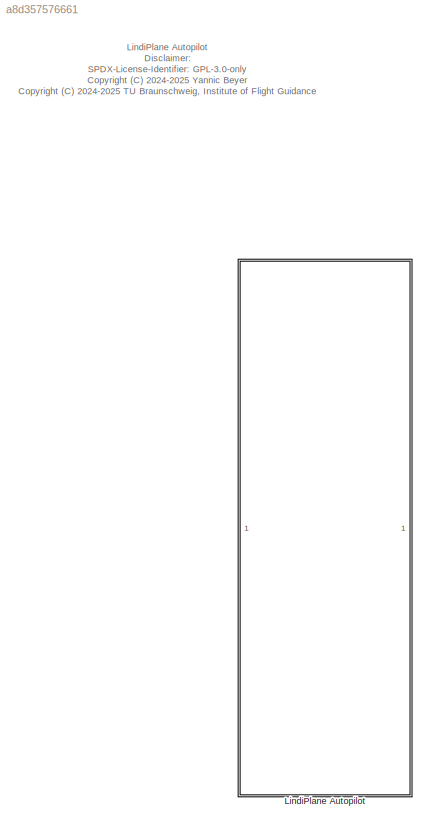
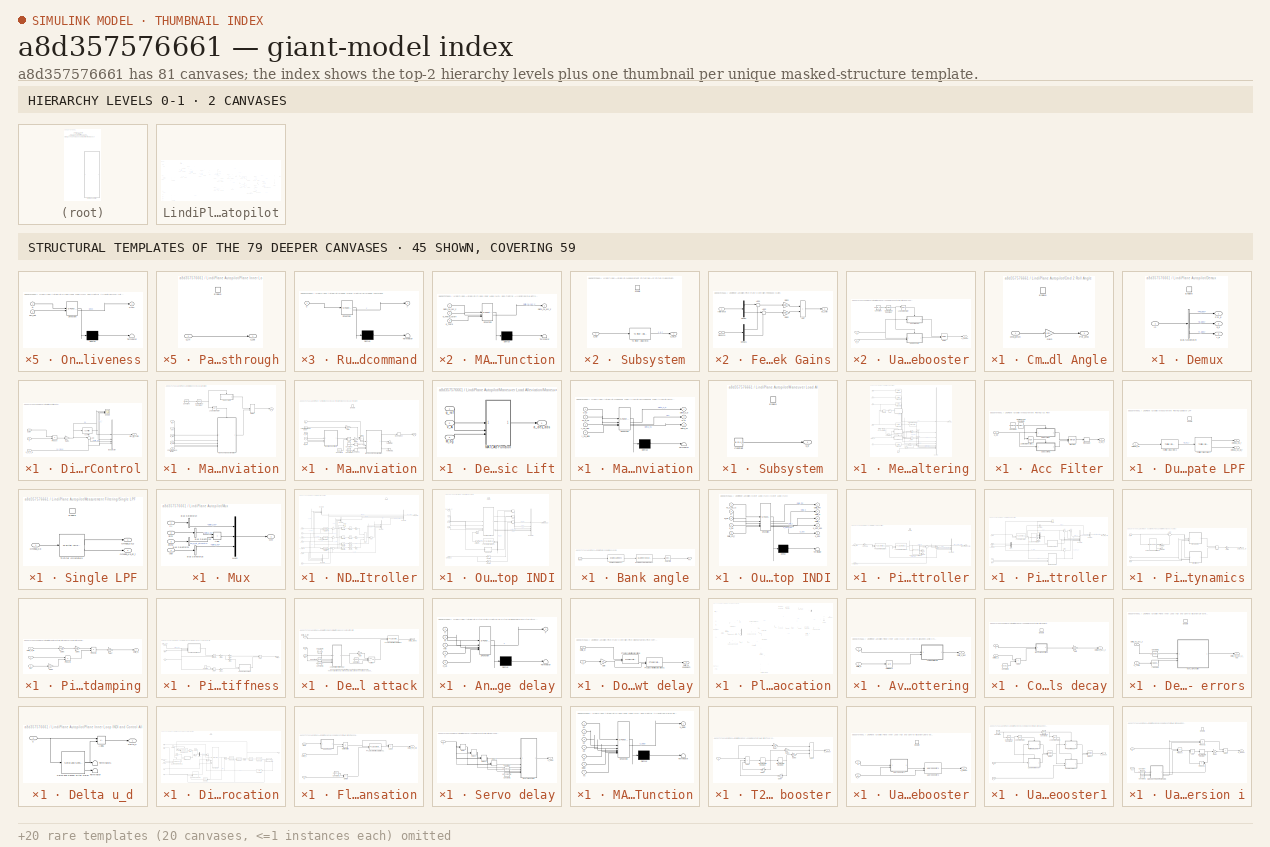
[diagram: thumbnail index - top-2 hierarchy levels (2 canvases) + 45 structural-template representatives of the remaining 79 canvases]
MODEL slx_a8d357576661
KIND library
CONFIG AbsTol = auto
CONFIG EnableMultiTasking = off
CONFIG FixedStep = auto
CONFIG MaxStep = auto
CONFIG MinStep = auto
CONFIG RelTol = 1e-3
CONFIG SampleTimeConstraint = Unconstrained
CONFIG SolverName = VariableStepAuto
CONFIG StartTime = 0.0
CONFIG StopTime = 10.0
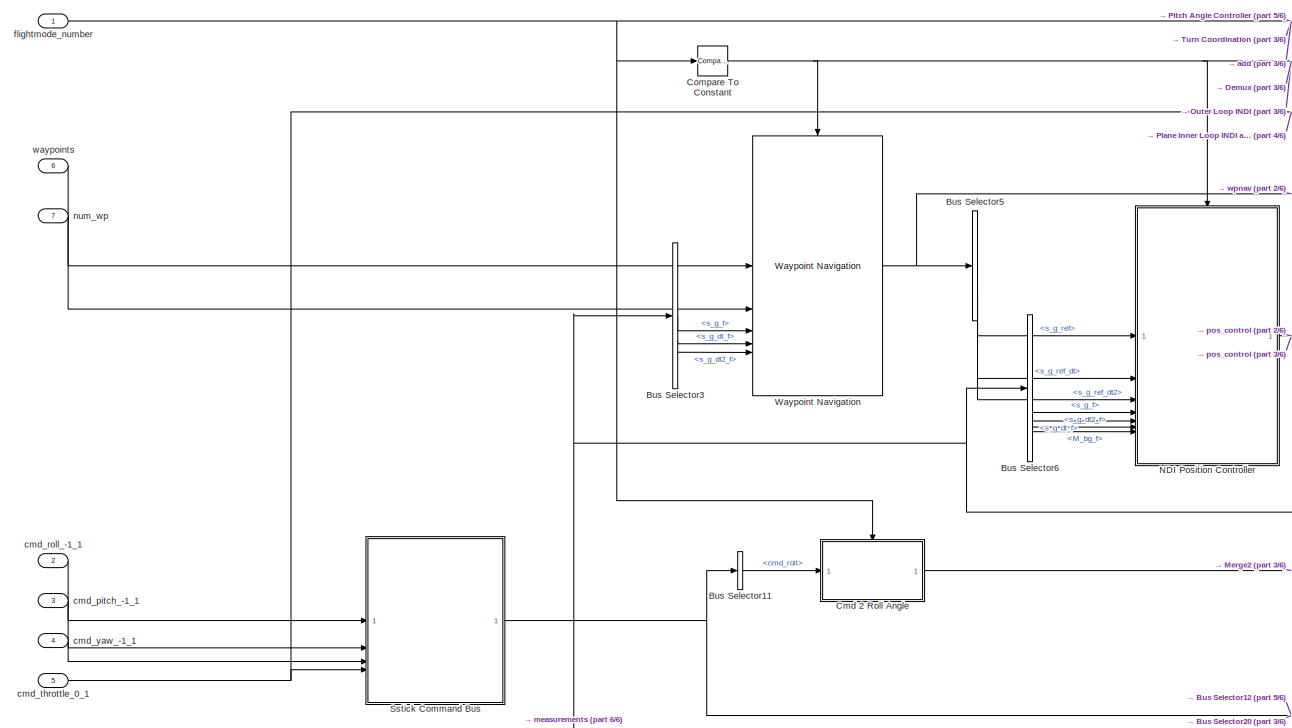
[diagram: LindiPlane Autopilot - part 1/6, top left region]
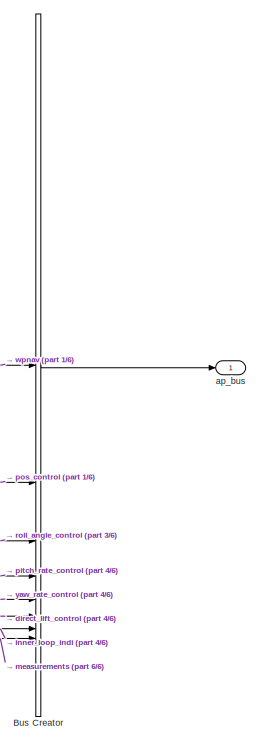
[diagram: LindiPlane Autopilot - part 2/6, middle right region]
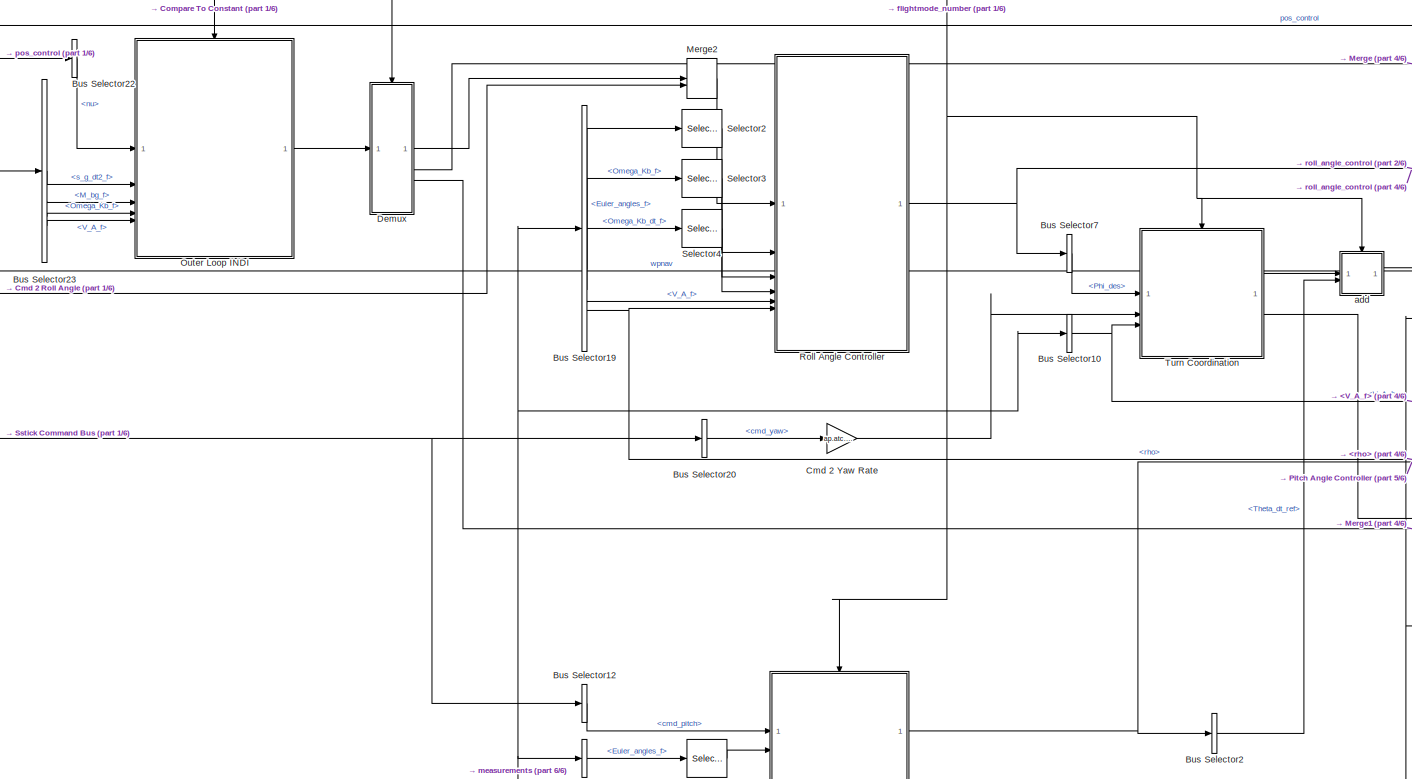
[diagram: LindiPlane Autopilot - part 3/6, central region]
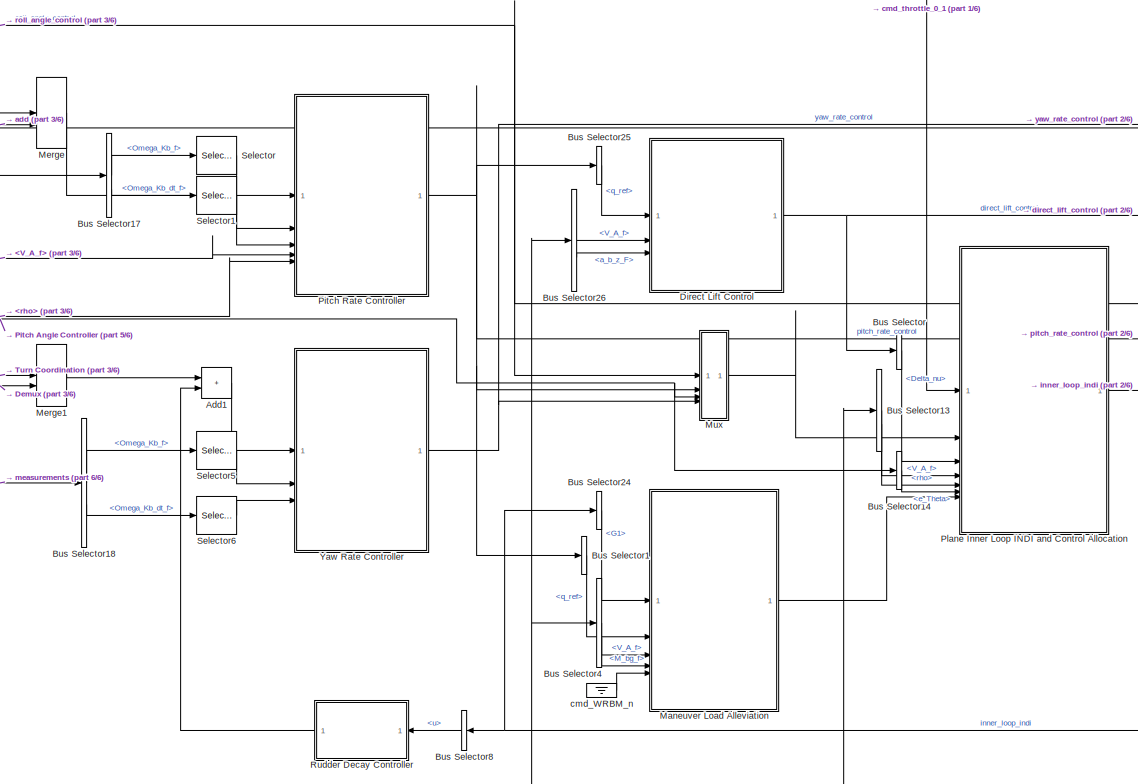
[diagram: LindiPlane Autopilot - part 4/6, middle right region]
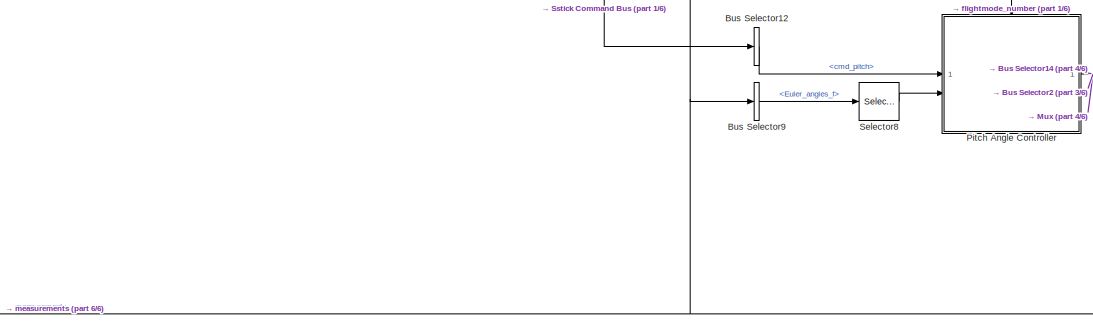
[diagram: LindiPlane Autopilot - part 5/6, bottom center region]
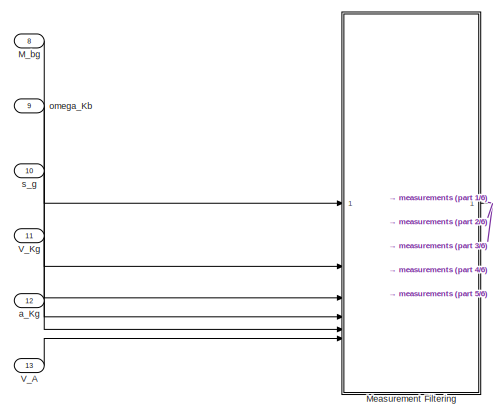
[diagram: LindiPlane Autopilot - part 6/6, bottom left region]
BLOCK [SubSystem] LindiPlane Autopilot
BLOCK [Sum] LindiPlane Autopilot/Add1
  IconShape = rectangular
BLOCK [BusCreator] LindiPlane Autopilot/Bus Creator
  DisplayOption = bar
  InheritFromInputs = on
  Inputs = 8
BLOCK [BusSelector] LindiPlane Autopilot/Bus Selector
  OutputSignals = Delta_nu
BLOCK [BusSelector] LindiPlane Autopilot/Bus Selector1
  OutputSignals = reference.q_ref
BLOCK [BusSelector] LindiPlane Autopilot/Bus Selector10
  OutputSignals = V_A_f
BLOCK [BusSelector] LindiPlane Autopilot/Bus Selector11
  OutputSignals = cmd_roll
BLOCK [BusSelector] LindiPlane Autopilot/Bus Selector12
  OutputSignals = cmd_pitch
BLOCK [BusSelector] LindiPlane Autopilot/Bus Selector13
  OutputSignals = V_A_f,rho
BLOCK [BusSelector] LindiPlane Autopilot/Bus Selector14
  OutputSignals = e_Theta
BLOCK [BusSelector] LindiPlane Autopilot/Bus Selector17
  OutputSignals = Omega_Kb_f,Omega_Kb_dt_f
BLOCK [BusSelector] LindiPlane Autopilot/Bus Selector18
  OutputSignals = Omega_Kb_f,Omega_Kb_dt_f
BLOCK [BusSelector] LindiPlane Autopilot/Bus Selector19
  OutputSignals = Euler_angles_f,Omega_Kb_f,Omega_Kb_dt_f,V_A_f,rho
BLOCK [BusSelector] LindiPlane Autopilot/Bus Selector2
  OutputSignals = Theta_dt_ref
BLOCK [BusSelector] LindiPlane Autopilot/Bus Selector20
  OutputSignals = cmd_yaw
BLOCK [BusSelector] LindiPlane Autopilot/Bus Selector22
  OutputSignals = pseudo_control.nu
BLOCK [BusSelector] LindiPlane Autopilot/Bus Selector23
  OutputSignals = s_g_dt2_f,M_bg_f,Omega_Kb_f,V_A_f
BLOCK [BusSelector] LindiPlane Autopilot/Bus Selector24
  OutputSignals = G1
BLOCK [BusSelector] LindiPlane Autopilot/Bus Selector25
  OutputSignals = reference.q_ref
BLOCK [BusSelector] LindiPlane Autopilot/Bus Selector26
  OutputSignals = V_A_f,a_b_z_F
BLOCK [BusSelector] LindiPlane Autopilot/Bus Selector3
  OutputSignals = s_g_f,s_g_dt_f,s_g_dt2_f
BLOCK [BusSelector] LindiPlane Autopilot/Bus Selector4
  OutputSignals = V_A_f,M_bg_f
BLOCK [BusSelector] LindiPlane Autopilot/Bus Selector5
  OutputSignals = ref_smooth.s_g_ref,ref_smooth.s_g_ref_dt,ref_smooth.s_g_ref_dt2
BLOCK [BusSelector] LindiPlane Autopilot/Bus Selector6
  OutputSignals = s_g_f,s_g_dt_f,s_g_dt2_f,M_bg_f
BLOCK [BusSelector] LindiPlane Autopilot/Bus Selector7
  OutputSignals = reference.Phi_des
BLOCK [BusSelector] LindiPlane Autopilot/Bus Selector8
  NameLocation = top
  OutputSignals = u
BLOCK [BusSelector] LindiPlane Autopilot/Bus Selector9
  OutputSignals = Euler_angles_f
BLOCK [SubSystem] LindiPlane Autopilot/Cmd 2 Roll Angle
BLOCK [EnablePort] LindiPlane Autopilot/Cmd 2 Roll Angle/Enable
BLOCK [Gain] LindiPlane Autopilot/Cmd 2 Roll Angle/Gain
  Gain = ap.atc.rm.rangmax*pi/180
BLOCK [Outport] LindiPlane Autopilot/Cmd 2 Roll Angle/Phi_cmd
  VectorParamsAs1DForOutWhenUnconnected = off
BLOCK [Inport] LindiPlane Autopilot/Cmd 2 Roll Angle/cmd_pitch
BLOCK [Gain] LindiPlane Autopilot/Cmd 2 Yaw Rate
  Gain = ap.atc.rm.ydecaytc
BLOCK [Reference] LindiPlane Autopilot/Compare To Constant  REF=simulink/Logic and Bit
Operations/Compare
To Constant
  SourceBlock = simulink/Logic and Bit\nOperations/Compare\nTo Constant
  SourceType = Compare To Constant
BLOCK [SubSystem] LindiPlane Autopilot/Demux
BLOCK [BusSelector] LindiPlane Autopilot/Demux/Bus Selector24
  OutputSignals = Phi_des,q_des,r_des
BLOCK [EnablePort] LindiPlane Autopilot/Demux/Enable
BLOCK [Inport] LindiPlane Autopilot/Demux/In
BLOCK [Outport] LindiPlane Autopilot/Demux/Phi_d
  VectorParamsAs1DForOutWhenUnconnected = off
BLOCK [Outport] LindiPlane Autopilot/Demux/q_d
  Port = 2
  VectorParamsAs1DForOutWhenUnconnected = off
BLOCK [Outport] LindiPlane Autopilot/Demux/r_d
  Port = 3
  VectorParamsAs1DForOutWhenUnconnected = off
BLOCK [SubSystem] LindiPlane Autopilot/Direct Lift Control
BLOCK [Reference] LindiPlane Autopilot/Direct Lift Control/Acc Filter  REF=$bdroot/LindiPlane Autopilot/Measurement Filtering/Acc Filter
  SourceBlock = $bdroot/LindiPlane Autopilot/Measurement Filtering/Acc Filter
  SourceType = SubSystem
BLOCK [Sum] LindiPlane Autopilot/Direct Lift Control/Add
  Inputs = |+-
BLOCK [BusCreator] LindiPlane Autopilot/Direct Lift Control/Bus Creator
  DisplayOption = bar
  InheritFromInputs = on
  Inputs = 4
BLOCK [Gain] LindiPlane Autopilot/Direct Lift Control/Gain1
  Gain = -1
BLOCK [Product] LindiPlane Autopilot/Direct Lift Control/Product
BLOCK [Scope] LindiPlane Autopilot/Direct Lift Control/Scope
  Floating = off
  NumInputPorts = 3
  ScopeSpecificationString = Simulink.scopes.TimeScopeBlockCfg('CurrentConfiguration', extmgr.ConfigurationSet(extmgr.Configuration('Core','General UI',true),extmgr.Configuration('Core','Source UI',true),extmgr.Configuration('Sources','WiredSimulink',true,'DataLoggingVariableName','ScopeData1'),extmgr.Configuration('Visuals','Time Domain',true,'SerializedDisplays',{struct('MinYLimReal','-10','MaxYLimReal','10','YLabelReal',''...<+1315ch>
BLOCK [Inport] LindiPlane Autopilot/Direct Lift Control/V
  Port = 2
BLOCK [Inport] LindiPlane Autopilot/Direct Lift Control/a_b_z_N
  Port = 3
BLOCK [Outport] LindiPlane Autopilot/Direct Lift Control/direct_lift_control
  VectorParamsAs1DForOutWhenUnconnected = off
BLOCK [Inport] LindiPlane Autopilot/Direct Lift Control/q_ref
BLOCK [Inport] LindiPlane Autopilot/M_bg
  Port = 8
BLOCK [SubSystem] LindiPlane Autopilot/Maneuver Load Alleviation
BLOCK [Reference] LindiPlane Autopilot/Maneuver Load Alleviation/Compare To Constant  REF=simulink/Logic and Bit
Operations/Compare
To Constant
  SourceBlock = simulink/Logic and Bit\nOperations/Compare\nTo Constant
  SourceType = Compare To Constant
BLOCK [Constant] LindiPlane Autopilot/Maneuver Load Alleviation/Constant
  Value = ap.mla.use
BLOCK [Inport] LindiPlane Autopilot/Maneuver Load Alleviation/G1
BLOCK [Logic] LindiPlane Autopilot/Maneuver Load Alleviation/Logical Operator
  AllPortsSameDT = off
  Operator = NOT
  OutDataTypeStr = boolean
BLOCK [Inport] LindiPlane Autopilot/Maneuver Load Alleviation/M_bg
  Port = 4
BLOCK [SubSystem] LindiPlane Autopilot/Maneuver Load Alleviation/Maneuver Load Alleviation
BLOCK [Sum] LindiPlane Autopilot/Maneuver Load Alleviation/Maneuver Load Alleviation/Add
  IconShape = rectangular
  Inputs = +-
BLOCK [Sum] LindiPlane Autopilot/Maneuver Load Alleviation/Maneuver Load Alleviation/Add1
  IconShape = rectangular
BLOCK [Constant] LindiPlane Autopilot/Maneuver Load Alleviation/Maneuver Load Alleviation/Constant
  Value = ap.cef.y
BLOCK [Constant] LindiPlane Autopilot/Maneuver Load Alleviation/Maneuver Load Alleviation/Constant1
  Value = 9.81
BLOCK [Constant] LindiPlane Autopilot/Maneuver Load Alleviation/Maneuver Load Alleviation/Constant2
  Value = ap.mla.eta_np*ap.eig.b/2
BLOCK [SubSystem] LindiPlane Autopilot/Maneuver Load Alleviation/Maneuver Load Alleviation/Desired Specific Lift
BLOCK [SubSystem] LindiPlane Autopilot/Maneuver Load Alleviation/Maneuver Load Alleviation/Desired Specific Lift/MATLAB Function
  ErrorFcn = Stateflow.Translate.translate
  PermitHierarchicalResolution = ExplicitOnly
  SFBlockType = MATLAB Function
  TreatAsAtomicUnit = on
BLOCK [Demux] LindiPlane Autopilot/Maneuver Load Alleviation/Maneuver Load Alleviation/Desired Specific Lift/MATLAB Function/ Demux 
  Outputs = 1
BLOCK [S-Function] LindiPlane Autopilot/Maneuver Load Alleviation/Maneuver Load Alleviation/Desired Specific Lift/MATLAB Function/ SFunction 
  EnableBusSupport = off
  FunctionName = sf_sfun
  PortCounts = [3 2]
  SFcnIsStateOwnerBlock = off
  SFunctionDeploymentMode = off
  Tag = Stateflow S-Function 8
BLOCK [Terminator] LindiPlane Autopilot/Maneuver Load Alleviation/Maneuver Load Alleviation/Desired Specific Lift/MATLAB Function/ Terminator 
BLOCK [Inport] LindiPlane Autopilot/Maneuver Load Alleviation/Maneuver Load Alleviation/Desired Specific Lift/MATLAB Function/M_bg
  Port = 3
BLOCK [Inport] LindiPlane Autopilot/Maneuver Load Alleviation/Maneuver Load Alleviation/Desired Specific Lift/MATLAB Function/V_A
  Port = 2
BLOCK [Outport] LindiPlane Autopilot/Maneuver Load Alleviation/Maneuver Load Alleviation/Desired Specific Lift/MATLAB Function/a_des_abs
  VectorParamsAs1DForOutWhenUnconnected = off
BLOCK [Inport] LindiPlane Autopilot/Maneuver Load Alleviation/Maneuver Load Alleviation/Desired Specific Lift/MATLAB Function/q_ref
BLOCK [Inport] LindiPlane Autopilot/Maneuver Load Alleviation/Maneuver Load Alleviation/Desired Specific Lift/M_bg
  Port = 3
BLOCK [Inport] LindiPlane Autopilot/Maneuver Load Alleviation/Maneuver Load Alleviation/Desired Specific Lift/V_A
  Port = 2
BLOCK [Outport] LindiPlane Autopilot/Maneuver Load Alleviation/Maneuver Load Alleviation/Desired Specific Lift/a_des_abs
  VectorParamsAs1DForOutWhenUnconnected = off
BLOCK [Inport] LindiPlane Autopilot/Maneuver Load Alleviation/Maneuver Load Alleviation/Desired Specific Lift/q_ref
BLOCK [EnablePort] LindiPlane Autopilot/Maneuver Load Alleviation/Maneuver Load Alleviation/Enable
  StatesWhenEnabling = reset
BLOCK [Inport] LindiPlane Autopilot/Maneuver Load Alleviation/Maneuver Load Alleviation/G1
BLOCK [Gain] LindiPlane Autopilot/Maneuver Load Alleviation/Maneuver Load Alleviation/Gain
  Gain = 9.81
BLOCK [Gain] LindiPlane Autopilot/Maneuver Load Alleviation/Maneuver Load Alleviation/Gain1
  Gain = -1
BLOCK [Inport] LindiPlane Autopilot/Maneuver Load Alleviation/Maneuver Load Alleviation/M_bg
  Port = 4
BLOCK [SubSystem] LindiPlane Autopilot/Maneuver Load Alleviation/Maneuver Load Alleviation/Maneuver Load Alleviation
  ErrorFcn = Stateflow.Translate.translate
  PermitHierarchicalResolution = ExplicitOnly
  SFBlockType = MATLAB Function
  TreatAsAtomicUnit = on
BLOCK [Demux] LindiPlane Autopilot/Maneuver Load Alleviation/Maneuver Load Alleviation/Maneuver Load Alleviation/ Demux 
  Outputs = 1
BLOCK [S-Function] LindiPlane Autopilot/Maneuver Load Alleviation/Maneuver Load Alleviation/Maneuver Load Alleviation/ SFunction 
  EnableBusSupport = off
  FunctionName = sf_sfun
  Parameters = ca_main,ca_mla
  PortCounts = [4 4]
  SFcnIsStateOwnerBlock = off
  SFunctionDeploymentMode = off
  Tag = Stateflow S-Function 9
BLOCK [Terminator] LindiPlane Autopilot/Maneuver Load Alleviation/Maneuver Load Alleviation/Maneuver Load Alleviation/ Terminator 
BLOCK [Outport] LindiPlane Autopilot/Maneuver Load Alleviation/Maneuver Load Alleviation/Maneuver Load Alleviation/Delta_nu
  Port = 3
  VectorParamsAs1DForOutWhenUnconnected = off
BLOCK [Outport] LindiPlane Autopilot/Maneuver Load Alleviation/Maneuver Load Alleviation/Maneuver Load Alleviation/Delta_u_d
  VectorParamsAs1DForOutWhenUnconnected = off
BLOCK [Inport] LindiPlane Autopilot/Maneuver Load Alleviation/Maneuver Load Alleviation/Maneuver Load Alleviation/G10
BLOCK [Outport] LindiPlane Autopilot/Maneuver Load Alleviation/Maneuver Load Alleviation/Maneuver Load Alleviation/G11
  Port = 2
  VectorParamsAs1DForOutWhenUnconnected = off
BLOCK [Inport] LindiPlane Autopilot/Maneuver Load Alleviation/Maneuver Load Alleviation/Maneuver Load Alleviation/nu_a_Kz
  Port = 2
BLOCK [Inport] LindiPlane Autopilot/Maneuver Load Alleviation/Maneuver Load Alleviation/Maneuver Load Alleviation/y_cp_flap
  Port = 3
BLOCK [Inport] LindiPlane Autopilot/Maneuver Load Alleviation/Maneuver Load Alleviation/Maneuver Load Alleviation/y_np_wing
  Port = 4
BLOCK [Reshape] LindiPlane Autopilot/Maneuver Load Alleviation/Maneuver Load Alleviation/Reshape
  OutputDimensionality = Row vector (2-D)
BLOCK [Reshape] LindiPlane Autopilot/Maneuver Load Alleviation/Maneuver Load Alleviation/Reshape1
  OutputDimensionality = Row vector (2-D)
BLOCK [Reshape] LindiPlane Autopilot/Maneuver Load Alleviation/Maneuver Load Alleviation/Reshape4
  NameLocation = top
BLOCK [Terminator] LindiPlane Autopilot/Maneuver Load Alleviation/Maneuver Load Alleviation/Terminator
BLOCK [Terminator] LindiPlane Autopilot/Maneuver Load Alleviation/Maneuver Load Alleviation/Terminator1
BLOCK [Inport] LindiPlane Autopilot/Maneuver Load Alleviation/Maneuver Load Alleviation/V_A
  Port = 2
BLOCK [Inport] LindiPlane Autopilot/Maneuver Load Alleviation/Maneuver Load Alleviation/cmd WRBM load factor
  Port = 5
BLOCK [Inport] LindiPlane Autopilot/Maneuver Load Alleviation/Maneuver Load Alleviation/q_ref
  Port = 3
BLOCK [Outport] LindiPlane Autopilot/Maneuver Load Alleviation/Maneuver Load Alleviation/u_d
  VectorParamsAs1DForOutWhenUnconnected = off
BLOCK [Merge] LindiPlane Autopilot/Maneuver Load Alleviation/Merge
BLOCK [SubSystem] LindiPlane Autopilot/Maneuver Load Alleviation/Subsystem
BLOCK [Constant] LindiPlane Autopilot/Maneuver Load Alleviation/Subsystem/Constant
  Value = ap.ca.u_d
BLOCK [EnablePort] LindiPlane Autopilot/Maneuver Load Alleviation/Subsystem/Enable
BLOCK [Outport] LindiPlane Autopilot/Maneuver Load Alleviation/Subsystem/u_d
  VectorParamsAs1DForOutWhenUnconnected = off
BLOCK [Inport] LindiPlane Autopilot/Maneuver Load Alleviation/V_A
  Port = 3
BLOCK [Inport] LindiPlane Autopilot/Maneuver Load Alleviation/cmd WRBM load factor
  Port = 5
BLOCK [Inport] LindiPlane Autopilot/Maneuver Load Alleviation/q_ref
  Port = 2
BLOCK [Outport] LindiPlane Autopilot/Maneuver Load Alleviation/u_d
  VectorParamsAs1DForOutWhenUnconnected = off
BLOCK [SubSystem] LindiPlane Autopilot/Measurement Filtering
BLOCK [SubSystem] LindiPlane Autopilot/Measurement Filtering/Acc Filter
BLOCK [Reference] LindiPlane Autopilot/Measurement Filtering/Acc Filter/Compare To Constant1  REF=simulink/Logic and Bit
Operations/Compare
To Constant
  SourceBlock = simulink/Logic and Bit\nOperations/Compare\nTo Constant
  SourceType = Compare To Constant
BLOCK [Constant] LindiPlane Autopilot/Measurement Filtering/Acc Filter/Constant2
  Value = ap.dlc.opt
BLOCK [Logic] LindiPlane Autopilot/Measurement Filtering/Acc Filter/Logical Operator1
  AllPortsSameDT = off
  Operator = NOT
  OutDataTypeStr = boolean
BLOCK [Merge] LindiPlane Autopilot/Measurement Filtering/Acc Filter/Merge2
BLOCK [Reshape] LindiPlane Autopilot/Measurement Filtering/Acc Filter/Reshape
BLOCK [SubSystem] LindiPlane Autopilot/Measurement Filtering/Acc Filter/Subsystem
BLOCK [EnablePort] LindiPlane Autopilot/Measurement Filtering/Acc Filter/Subsystem/Enable
BLOCK [Reference] LindiPlane Autopilot/Measurement Filtering/Acc Filter/Subsystem/T2 Filter (Discrete)  REF=filters_lib/T2 Filter (Discrete)  (lib defined in slx_a584fcc4ebc5)
  SourceBlock = filters_lib/T2 Filter (Discrete)
  SourceProductName = LADAC
  SourceType = T2Filter
BLOCK [Inport] LindiPlane Autopilot/Measurement Filtering/Acc Filter/Subsystem/a_Kb
BLOCK [Outport] LindiPlane Autopilot/Measurement Filtering/Acc Filter/Subsystem/a_Kb_F
  VectorParamsAs1DForOutWhenUnconnected = off
BLOCK [SubSystem] LindiPlane Autopilot/Measurement Filtering/Acc Filter/Subsystem1
BLOCK [EnablePort] LindiPlane Autopilot/Measurement Filtering/Acc Filter/Subsystem1/Enable
BLOCK [Reference] LindiPlane Autopilot/Measurement Filtering/Acc Filter/Subsystem1/T2 Filter (Discrete)  REF=filters_lib/T2 Filter (Discrete)  (lib defined in slx_a584fcc4ebc5)
  SourceBlock = filters_lib/T2 Filter (Discrete)
  SourceProductName = LADAC
  SourceType = T2Filter
BLOCK [Inport] LindiPlane Autopilot/Measurement Filtering/Acc Filter/Subsystem1/a_Kb
BLOCK [Outport] LindiPlane Autopilot/Measurement Filtering/Acc Filter/Subsystem1/a_Kb_F
  VectorParamsAs1DForOutWhenUnconnected = off
BLOCK [Inport] LindiPlane Autopilot/Measurement Filtering/Acc Filter/a_Kb
BLOCK [Outport] LindiPlane Autopilot/Measurement Filtering/Acc Filter/a_Kb_F
  VectorParamsAs1DForOutWhenUnconnected = off
BLOCK [BusCreator] LindiPlane Autopilot/Measurement Filtering/Bus Creator
  DisplayOption = bar
  InheritFromInputs = on
  Inputs = 10
BLOCK [Reference] LindiPlane Autopilot/Measurement Filtering/Compare To Constant  REF=simulink/Logic and Bit
Operations/Compare
To Constant
  SourceBlock = simulink/Logic and Bit\nOperations/Compare\nTo Constant
  SourceType = Compare To Constant
BLOCK [Constant] LindiPlane Autopilot/Measurement Filtering/Constant
  Value = ap.aspd.min
BLOCK [Constant] LindiPlane Autopilot/Measurement Filtering/Constant1
  Value = ap.sflt.numGyrFlt
BLOCK [SubSystem] LindiPlane Autopilot/Measurement Filtering/Duplicate LPF
BLOCK [EnablePort] LindiPlane Autopilot/Measurement Filtering/Duplicate LPF/Enable
BLOCK [Inport] LindiPlane Autopilot/Measurement Filtering/Duplicate LPF/Omega_Kb
BLOCK [Outport] LindiPlane Autopilot/Measurement Filtering/Duplicate LPF/Omega_Kb_dt_f
  Port = 2
  VectorParamsAs1DForOutWhenUnconnected = off
BLOCK [Outport] LindiPlane Autopilot/Measurement Filtering/Duplicate LPF/Omega_Kb_f
  VectorParamsAs1DForOutWhenUnconnected = off
BLOCK [Reference] LindiPlane Autopilot/Measurement Filtering/Duplicate LPF/T2 Filter (Discrete)1  REF=filters_lib/T2 Filter (Discrete)  (lib defined in slx_a584fcc4ebc5)
  SourceBlock = filters_lib/T2 Filter (Discrete)
  SourceProductName = LADAC
  SourceType = T2Filter
BLOCK [Reference] LindiPlane Autopilot/Measurement Filtering/Duplicate LPF/T2 Filter (Discrete)3  REF=filters_lib/T2 Filter (Discrete)  (lib defined in slx_a584fcc4ebc5)
  SourceBlock = filters_lib/T2 Filter (Discrete)
  SourceProductName = LADAC
  SourceType = T2Filter
BLOCK [Logic] LindiPlane Autopilot/Measurement Filtering/Logical Operator
  AllPortsSameDT = off
  Operator = NOT
  OutDataTypeStr = boolean
BLOCK [Inport] LindiPlane Autopilot/Measurement Filtering/M_bg
BLOCK [Product] LindiPlane Autopilot/Measurement Filtering/Matrix Multiply
  Multiplication = Matrix(*)
BLOCK [MinMax] LindiPlane Autopilot/Measurement Filtering/Max
  Function = max
  Inputs = 2
BLOCK [Merge] LindiPlane Autopilot/Measurement Filtering/Merge
BLOCK [Merge] LindiPlane Autopilot/Measurement Filtering/Merge1
BLOCK [Inport] LindiPlane Autopilot/Measurement Filtering/Omega_Kb
  Port = 2
BLOCK [Reshape] LindiPlane Autopilot/Measurement Filtering/Reshape
  OutputDimensionality = Column vector (2-D)
BLOCK [Reshape] LindiPlane Autopilot/Measurement Filtering/Reshape1
  OutputDimensionality = Column vector (2-D)
BLOCK [Reshape] LindiPlane Autopilot/Measurement Filtering/Reshape2
BLOCK [Reference] LindiPlane Autopilot/Measurement Filtering/Rotations matrix to Euler angles  REF=axes_transformation_lib/Rotations matrix to Euler angles  (lib defined in slx_69e2413c78c0)
  SourceBlock = axes_transformation_lib/Rotations matrix to Euler angles
  SourceProductName = LADAC
  SourceType = SubSystem
BLOCK [Selector] LindiPlane Autopilot/Measurement Filtering/Selector
  IndexOptions = Index vector (dialog)
  Indices = 3
  InputPortWidth = 3
  OutputSizes = 1
BLOCK [SubSystem] LindiPlane Autopilot/Measurement Filtering/Single LPF
BLOCK [EnablePort] LindiPlane Autopilot/Measurement Filtering/Single LPF/Enable
BLOCK [Inport] LindiPlane Autopilot/Measurement Filtering/Single LPF/Omega_Kb
BLOCK [Outport] LindiPlane Autopilot/Measurement Filtering/Single LPF/Omega_Kb_dt_f
  Port = 2
  VectorParamsAs1DForOutWhenUnconnected = off
BLOCK [Outport] LindiPlane Autopilot/Measurement Filtering/Single LPF/Omega_Kb_f
  VectorParamsAs1DForOutWhenUnconnected = off
BLOCK [Reference] LindiPlane Autopilot/Measurement Filtering/Single LPF/T2 Filter (Discrete)3  REF=filters_lib/T2 Filter (Discrete)  (lib defined in slx_a584fcc4ebc5)
  SourceBlock = filters_lib/T2 Filter (Discrete)
  SourceProductName = LADAC
  SourceType = T2Filter
BLOCK [Reference] LindiPlane Autopilot/Measurement Filtering/T2 Filter (Discrete)  REF=filters_lib/T2 Filter (Discrete)  (lib defined in slx_a584fcc4ebc5)
  SourceBlock = filters_lib/T2 Filter (Discrete)
  SourceProductName = LADAC
  SourceType = T2Filter
BLOCK [Reference] LindiPlane Autopilot/Measurement Filtering/T2 Filter (Discrete)1  REF=filters_lib/T2 Filter (Discrete)  (lib defined in slx_a584fcc4ebc5)
  SourceBlock = filters_lib/T2 Filter (Discrete)
  SourceProductName = LADAC
  SourceType = T2Filter
BLOCK [Reference] LindiPlane Autopilot/Measurement Filtering/T2 Filter (Discrete)2  REF=filters_lib/T2 Filter (Discrete)  (lib defined in slx_a584fcc4ebc5)
  SourceBlock = filters_lib/T2 Filter (Discrete)
  SourceProductName = LADAC
  SourceType = T2Filter
BLOCK [Reference] LindiPlane Autopilot/Measurement Filtering/T2 Filter (Discrete)3  REF=filters_lib/T2 Filter (Discrete)  (lib defined in slx_a584fcc4ebc5)
  SourceBlock = filters_lib/T2 Filter (Discrete)
  SourceProductName = LADAC
  SourceType = T2Filter
BLOCK [Reference] LindiPlane Autopilot/Measurement Filtering/T2 Filter (Discrete)4  REF=filters_lib/T2 Filter (Discrete)  (lib defined in slx_a584fcc4ebc5)
  SourceBlock = filters_lib/T2 Filter (Discrete)
  SourceProductName = LADAC
  SourceType = T2Filter
BLOCK [Inport] LindiPlane Autopilot/Measurement Filtering/V_A
  Port = 6
BLOCK [Inport] LindiPlane Autopilot/Measurement Filtering/a_Kg
  Port = 5
BLOCK [Outport] LindiPlane Autopilot/Measurement Filtering/measureBus
  VectorParamsAs1DForOutWhenUnconnected = off
BLOCK [Constant] LindiPlane Autopilot/Measurement Filtering/rho
  Value = 1.225
BLOCK [Inport] LindiPlane Autopilot/Measurement Filtering/s_g
  Port = 3
BLOCK [Inport] LindiPlane Autopilot/Measurement Filtering/s_g_dt
  Port = 4
BLOCK [Merge] LindiPlane Autopilot/Merge
BLOCK [Merge] LindiPlane Autopilot/Merge1
BLOCK [Merge] LindiPlane Autopilot/Merge2
BLOCK [SubSystem] LindiPlane Autopilot/Mux
BLOCK [Sum] LindiPlane Autopilot/Mux/Add
  IconShape = rectangular
BLOCK [BusSelector] LindiPlane Autopilot/Mux/Bus Selector14
  OutputSignals = pseudo_control.Delta_nu
BLOCK [BusSelector] LindiPlane Autopilot/Mux/Bus Selector15
  OutputSignals = pseudo_control.Delta_nu
BLOCK [BusSelector] LindiPlane Autopilot/Mux/Bus Selector16
  OutputSignals = pseudo_control.Delta_nu
BLOCK [BusSelector] LindiPlane Autopilot/Mux/Bus Selector21
  OutputSignals = nu_q_dt_ptchcntrl
BLOCK [Mux] LindiPlane Autopilot/Mux/Mux2
  DisplayOption = bar
  Inputs = 3
BLOCK [Outport] LindiPlane Autopilot/Mux/Om
  VectorParamsAs1DForOutWhenUnconnected = off
BLOCK [Inport] LindiPlane Autopilot/Mux/ptch
  Port = 2
BLOCK [Inport] LindiPlane Autopilot/Mux/ptch2
  Port = 3
BLOCK [Inport] LindiPlane Autopilot/Mux/rll
BLOCK [Inport] LindiPlane Autopilot/Mux/yaw
  Port = 4
BLOCK [SubSystem] LindiPlane Autopilot/NDI Position Controller
BLOCK [Sum] LindiPlane Autopilot/NDI Position Controller/Add
  Inputs = |+-
BLOCK [Sum] LindiPlane Autopilot/NDI Position Controller/Add1
  Inputs = |+-
BLOCK [Sum] LindiPlane Autopilot/NDI Position Controller/Add2
  Inputs = |+-
BLOCK [Sum] LindiPlane Autopilot/NDI Position Controller/Add3
  IconShape = rectangular
  Inputs = +++
BLOCK [Sum] LindiPlane Autopilot/NDI Position Controller/Add5
  IconShape = rectangular
BLOCK [BusCreator] LindiPlane Autopilot/NDI Position Controller/Bus Creator
  DisplayOption = bar
  InheritFromInputs = on
  Inputs = 4
BLOCK [BusCreator] LindiPlane Autopilot/NDI Position Controller/Bus Creator1
  DisplayOption = bar
  InheritFromInputs = on
  Inputs = 4
BLOCK [BusCreator] LindiPlane Autopilot/NDI Position Controller/Bus Creator2
  DisplayOption = bar
  InheritFromInputs = on
  Inputs = 3
BLOCK [BusCreator] LindiPlane Autopilot/NDI Position Controller/Bus Creator3
  DisplayOption = bar
  InheritFromInputs = on
  Inputs = 3
BLOCK [BusCreator] LindiPlane Autopilot/NDI Position Controller/Bus Creator4
  DisplayOption = bar
  InheritFromInputs = on
  Inputs = 3
BLOCK [EnablePort] LindiPlane Autopilot/NDI Position Controller/Enable
  StatesWhenEnabling = reset
BLOCK [Gain] LindiPlane Autopilot/NDI Position Controller/Gain
  Gain = ap.psc.k.pos
BLOCK [Gain] LindiPlane Autopilot/NDI Position Controller/Gain1
  Gain = ap.psc.k.vel
BLOCK [Gain] LindiPlane Autopilot/NDI Position Controller/Gain2
  Gain = ap.psc.k.acc
BLOCK [Inport] LindiPlane Autopilot/NDI Position Controller/M_bg
  Port = 7
BLOCK [Product] LindiPlane Autopilot/NDI Position Controller/Matrix Multiply
  Multiplication = Matrix(*)
BLOCK [Product] LindiPlane Autopilot/NDI Position Controller/Matrix Multiply1
  Multiplication = Matrix(*)
BLOCK [Product] LindiPlane Autopilot/NDI Position Controller/Matrix Multiply2
  Multiplication = Matrix(*)
BLOCK [Product] LindiPlane Autopilot/NDI Position Controller/Matrix Multiply3
  Multiplication = Matrix(*)
BLOCK [Reference] LindiPlane Autopilot/NDI Position Controller/PT2 discrete with saturation  REF=filters_lib/PT2 discrete with saturation  (lib defined in slx_a584fcc4ebc5)
  SourceBlock = filters_lib/PT2 discrete with saturation
  SourceProductName = LADAC
  SourceType = PT2 discrete with saturation
BLOCK [Reference] LindiPlane Autopilot/NDI Position Controller/PT2 discrete with saturation1  REF=filters_lib/PT2 discrete with saturation  (lib defined in slx_a584fcc4ebc5)
  SourceBlock = filters_lib/PT2 discrete with saturation
  SourceProductName = LADAC
  SourceType = PT2 discrete with saturation
BLOCK [Reference] LindiPlane Autopilot/NDI Position Controller/PT2 discrete with saturation2  REF=filters_lib/PT2 discrete with saturation  (lib defined in slx_a584fcc4ebc5)
  SourceBlock = filters_lib/PT2 discrete with saturation
  SourceProductName = LADAC
  SourceType = PT2 discrete with saturation
BLOCK [Scope] LindiPlane Autopilot/NDI Position Controller/Scope
  Floating = off
  NumInputPorts = 1
  ScopeSpecificationString = Simulink.scopes.TimeScopeBlockCfg('CurrentConfiguration', extmgr.ConfigurationSet(extmgr.Configuration('Core','General UI',true),extmgr.Configuration('Core','Source UI',true),extmgr.Configuration('Sources','WiredSimulink',true,'DataLoggingVariableName','ScopeData1'),extmgr.Configuration('Visuals','Time Domain',true,'SerializedDisplays',{struct('MinYLimReal','-0.83749','MaxYLimReal','2.03972','YLab...<+1454ch>
BLOCK [Selector] LindiPlane Autopilot/NDI Position Controller/Selector
  IndexOptions = Index vector (dialog)
  Indices = [2,3]
  InputPortWidth = 3
  OutputSizes = 1
BLOCK [Selector] LindiPlane Autopilot/NDI Position Controller/Selector1
  IndexOptions = Index vector (dialog)
  Indices = [2,3]
  InputPortWidth = 3
  OutputSizes = 1
BLOCK [Selector] LindiPlane Autopilot/NDI Position Controller/Selector2
  IndexOptions = Index vector (dialog)
  Indices = [2,3]
  InputPortWidth = 3
  OutputSizes = 1
BLOCK [Selector] LindiPlane Autopilot/NDI Position Controller/Selector3
  IndexOptions = Index vector (dialog)
  Indices = [2,3]
  InputPortWidth = 3
  OutputSizes = 1
BLOCK [Outport] LindiPlane Autopilot/NDI Position Controller/pos_control
  VectorParamsAs1DForOutWhenUnconnected = off
BLOCK [Inport] LindiPlane Autopilot/NDI Position Controller/s_g
  Port = 4
BLOCK [Inport] LindiPlane Autopilot/NDI Position Controller/s_g_dt
  Port = 5
BLOCK [Inport] LindiPlane Autopilot/NDI Position Controller/s_g_dt2
  Port = 6
BLOCK [Inport] LindiPlane Autopilot/NDI Position Controller/s_g_ref
BLOCK [Inport] LindiPlane Autopilot/NDI Position Controller/s_g_ref_dt
  Port = 2
BLOCK [Inport] LindiPlane Autopilot/NDI Position Controller/s_g_ref_dt2
  Port = 3
BLOCK [SubSystem] LindiPlane Autopilot/Outer Loop INDI
BLOCK [Sum] LindiPlane Autopilot/Outer Loop INDI/Add7
  IconShape = rectangular
BLOCK [Sum] LindiPlane Autopilot/Outer Loop INDI/Add8
  IconShape = rectangular
BLOCK [Sum] LindiPlane Autopilot/Outer Loop INDI/Add9
  IconShape = rectangular
BLOCK [SubSystem] LindiPlane Autopilot/Outer Loop INDI/Bank angle
BLOCK [Reference] LindiPlane Autopilot/Outer Loop INDI/Bank angle/DCM to quaternions1  REF=axes_transformation_lib/DCM to quaternions  (lib defined in slx_69e2413c78c0)
  SourceBlock = axes_transformation_lib/DCM to quaternions
  SourceProductName = LADAC
  SourceType = SubSystem
BLOCK [Inport] LindiPlane Autopilot/Outer Loop INDI/Bank angle/M_bg
BLOCK [Outport] LindiPlane Autopilot/Outer Loop INDI/Bank angle/Phi
  VectorParamsAs1DForOutWhenUnconnected = off
BLOCK [Reference] LindiPlane Autopilot/Outer Loop INDI/Bank angle/Quaternions to Euler angles1  REF=axes_transformation_lib/Quaternions to Euler angles  (lib defined in slx_69e2413c78c0)
  SourceBlock = axes_transformation_lib/Quaternions to Euler angles
  SourceProductName = LADAC
  SourceType = SubSystem
BLOCK [Selector] LindiPlane Autopilot/Outer Loop INDI/Bank angle/Selector5
  IndexOptions = Index vector (dialog)
  Indices = 1
  InputPortWidth = 3
  OutputSizes = 1
BLOCK [BusCreator] LindiPlane Autopilot/Outer Loop INDI/Bus Creator
  DisplayOption = bar
  InheritFromInputs = on
  Inputs = 5
BLOCK [EnablePort] LindiPlane Autopilot/Outer Loop INDI/Enable
  StatesWhenEnabling = reset
BLOCK [Gain] LindiPlane Autopilot/Outer Loop INDI/Gain4
BLOCK [Inport] LindiPlane Autopilot/Outer Loop INDI/M_bg
  Port = 3
BLOCK [Inport] LindiPlane Autopilot/Outer Loop INDI/Omega_Kb
  Port = 4
BLOCK [SubSystem] LindiPlane Autopilot/Outer Loop INDI/Outer Loop INDI
  ErrorFcn = Stateflow.Translate.translate
  PermitHierarchicalResolution = ExplicitOnly
  SFBlockType = MATLAB Function
  TreatAsAtomicUnit = on
BLOCK [Demux] LindiPlane Autopilot/Outer Loop INDI/Outer Loop INDI/ Demux 
  Outputs = 1
BLOCK [S-Function] LindiPlane Autopilot/Outer Loop INDI/Outer Loop INDI/ SFunction 
  EnableBusSupport = off
  FunctionName = sf_sfun
  PortCounts = [5 6]
  SFcnIsStateOwnerBlock = off
  SFunctionDeploymentMode = off
  Tag = Stateflow S-Function 6
BLOCK [Terminator] LindiPlane Autopilot/Outer Loop INDI/Outer Loop INDI/ Terminator 
BLOCK [Outport] LindiPlane Autopilot/Outer Loop INDI/Outer Loop INDI/Delta_Phi
  VectorParamsAs1DForOutWhenUnconnected = off
BLOCK [Inport] LindiPlane Autopilot/Outer Loop INDI/Outer Loop INDI/Delta_Phi_f
  Port = 5
BLOCK [Outport] LindiPlane Autopilot/Outer Loop INDI/Outer Loop INDI/Delta_q
  Port = 2
  VectorParamsAs1DForOutWhenUnconnected = off
BLOCK [Outport] LindiPlane Autopilot/Outer Loop INDI/Outer Loop INDI/Delta_r
  Port = 3
  VectorParamsAs1DForOutWhenUnconnected = off
BLOCK [Inport] LindiPlane Autopilot/Outer Loop INDI/Outer Loop INDI/M_bg
  Port = 3
BLOCK [Inport] LindiPlane Autopilot/Outer Loop INDI/Outer Loop INDI/V
  Port = 2
BLOCK [Inport] LindiPlane Autopilot/Outer Loop INDI/Outer Loop INDI/a_Kg
  Port = 4
BLOCK [Outport] LindiPlane Autopilot/Outer Loop INDI/Outer Loop INDI/a_abs
  Port = 5
  VectorParamsAs1DForOutWhenUnconnected = off
BLOCK [Outport] LindiPlane Autopilot/Outer Loop INDI/Outer Loop INDI/a_des_abs
  Port = 4
  VectorParamsAs1DForOutWhenUnconnected = off
BLOCK [Inport] LindiPlane Autopilot/Outer Loop INDI/Outer Loop INDI/nu_a_Kb_yz
BLOCK [Reference] LindiPlane Autopilot/Outer Loop INDI/PT1 discrete with saturations1  REF=filters_lib/PT1 discrete with saturations  (lib defined in slx_a584fcc4ebc5)
  NameLocation = top
  SourceBlock = filters_lib/PT1 discrete with saturations
  SourceProductName = LADAC
  SourceType = PT1 discrete with saturation
BLOCK [Selector] LindiPlane Autopilot/Outer Loop INDI/Selector7
  IndexOptions = Index vector (dialog)
  Indices = 3
  InputPortWidth = 3
  OutputSizes = 1
BLOCK [Selector] LindiPlane Autopilot/Outer Loop INDI/Selector8
  IndexOptions = Index vector (dialog)
  Indices = 2
  InputPortWidth = 3
  OutputSizes = 1
BLOCK [UnitDelay] LindiPlane Autopilot/Outer Loop INDI/Unit Delay1
  HasFrameUpgradeWarning = on
  SampleTime = -1
BLOCK [Inport] LindiPlane Autopilot/Outer Loop INDI/V_A
  Port = 5
BLOCK [Inport] LindiPlane Autopilot/Outer Loop INDI/a_Kb
  Port = 2
BLOCK [Inport] LindiPlane Autopilot/Outer Loop INDI/nu_a_Kb_yz
BLOCK [Outport] LindiPlane Autopilot/Outer Loop INDI/outer_loop_indi
  VectorParamsAs1DForOutWhenUnconnected = off
BLOCK [SubSystem] LindiPlane Autopilot/Pitch Angle Controller
BLOCK [Sum] LindiPlane Autopilot/Pitch Angle Controller/Add3
  Inputs = |+-
BLOCK [BusCreator] LindiPlane Autopilot/Pitch Angle Controller/Bus Creator
  DisplayOption = bar
  InheritFromInputs = on
  Inputs = 4
BLOCK [EnablePort] LindiPlane Autopilot/Pitch Angle Controller/Enable
  StatesWhenEnabling = reset
BLOCK [Gain] LindiPlane Autopilot/Pitch Angle Controller/Gain
  Gain = ap.atc.k.pang
BLOCK [Reference] LindiPlane Autopilot/Pitch Angle Controller/PT1 discrete with saturations  REF=filters_lib/PT1 discrete with saturations  (lib defined in slx_a584fcc4ebc5)
  SourceBlock = filters_lib/PT1 discrete with saturations
  SourceProductName = LADAC
  SourceType = PT1 discrete with saturation
BLOCK [Reference] LindiPlane Autopilot/Pitch Angle Controller/PT1 discrete with saturations1  REF=filters_lib/PT1 discrete with saturations  (lib defined in slx_a584fcc4ebc5)
  SourceBlock = filters_lib/PT1 discrete with saturations
  SourceProductName = LADAC
  SourceType = PT1 discrete with saturation
BLOCK [Reference] LindiPlane Autopilot/Pitch Angle Controller/Servo and Sensor Filter Delay  REF=$bdroot/LindiPlane Autopilot/Roll Angle Controller/Servo and Sensor Filter Delay
  SourceBlock = $bdroot/LindiPlane Autopilot/Roll Angle Controller/Servo and Sensor Filter Delay
  SourceType = SubSystem
BLOCK [Terminator] LindiPlane Autopilot/Pitch Angle Controller/Terminator
BLOCK [Terminator] LindiPlane Autopilot/Pitch Angle Controller/Terminator1
BLOCK [Inport] LindiPlane Autopilot/Pitch Angle Controller/Theta_cmd
BLOCK [Inport] LindiPlane Autopilot/Pitch Angle Controller/Theta_meas
  Port = 2
BLOCK [Gain] LindiPlane Autopilot/Pitch Angle Controller/cmd 2 angle
  Gain = ap.atc.rm.pangmax*pi/180
BLOCK [Outport] LindiPlane Autopilot/Pitch Angle Controller/pitch_angle_control
  VectorParamsAs1DForOutWhenUnconnected = off
BLOCK [SubSystem] LindiPlane Autopilot/Pitch Rate Controller
BLOCK [Sum] LindiPlane Autopilot/Pitch Rate Controller/Add1
  Inputs = |++
BLOCK [Sum] LindiPlane Autopilot/Pitch Rate Controller/Add2
  Inputs = |+-
BLOCK [Sum] LindiPlane Autopilot/Pitch Rate Controller/Add9
  Inputs = |++
BLOCK [BusCreator] LindiPlane Autopilot/Pitch Rate Controller/Bus Creator
  DisplayOption = bar
  InheritFromInputs = on
  Inputs = 2
BLOCK [BusCreator] LindiPlane Autopilot/Pitch Rate Controller/Bus Creator1
  DisplayOption = bar
  InheritFromInputs = on
  Inputs = 6
BLOCK [BusCreator] LindiPlane Autopilot/Pitch Rate Controller/Bus Creator2
  DisplayOption = bar
  InheritFromInputs = on
  Inputs = 1
BLOCK [SubSystem] LindiPlane Autopilot/Pitch Rate Controller/Feedback Gains
BLOCK [Sum] LindiPlane Autopilot/Pitch Rate Controller/Feedback Gains/Add
  IconShape = rectangular
  Inputs = 2
BLOCK [Sum] LindiPlane Autopilot/Pitch Rate Controller/Feedback Gains/Add1
  Inputs = |+-
BLOCK [Sum] LindiPlane Autopilot/Pitch Rate Controller/Feedback Gains/Add2
  Inputs = |+-
BLOCK [Demux] LindiPlane Autopilot/Pitch Rate Controller/Feedback Gains/Demux
  Outputs = 2
BLOCK [Demux] LindiPlane Autopilot/Pitch Rate Controller/Feedback Gains/Demux1
  Outputs = 2
BLOCK [Gain] LindiPlane Autopilot/Pitch Rate Controller/Feedback Gains/Gain3
  Gain = ap.atc.k.prat
BLOCK [Gain] LindiPlane Autopilot/Pitch Rate Controller/Feedback Gains/Gain5
  Gain = ap.atc.k.pacc
BLOCK [Inport] LindiPlane Autopilot/Pitch Rate Controller/Feedback Gains/measure
  Port = 2
BLOCK [Outport] LindiPlane Autopilot/Pitch Rate Controller/Feedback Gains/nu_cntrl
  VectorParamsAs1DForOutWhenUnconnected = off
BLOCK [Inport] LindiPlane Autopilot/Pitch Rate Controller/Feedback Gains/reference
BLOCK [Mux] LindiPlane Autopilot/Pitch Rate Controller/Mux1
  DisplayOption = bar
  Inputs = 2
BLOCK [Mux] LindiPlane Autopilot/Pitch Rate Controller/Mux2
  DisplayOption = bar
  Inputs = 2
BLOCK [Reference] LindiPlane Autopilot/Pitch Rate Controller/PT1 discrete with saturations  REF=filters_lib/PT1 discrete with saturations  (lib defined in slx_a584fcc4ebc5)
  SourceBlock = filters_lib/PT1 discrete with saturations
  SourceProductName = LADAC
  SourceType = PT1 discrete with saturation
BLOCK [SubSystem] LindiPlane Autopilot/Pitch Rate Controller/Pitch eigendynamics
BLOCK [Sum] LindiPlane Autopilot/Pitch Rate Controller/Pitch eigendynamics/Add2
  Inputs = |+-
BLOCK [Sum] LindiPlane Autopilot/Pitch Rate Controller/Pitch eigendynamics/Add5
  IconShape = rectangular
BLOCK [Outport] LindiPlane Autopilot/Pitch Rate Controller/Pitch eigendynamics/Delta_nu_q_dt
  VectorParamsAs1DForOutWhenUnconnected = off
BLOCK [Gain] LindiPlane Autopilot/Pitch Rate Controller/Pitch eigendynamics/Gain8
  Gain = 1/ap.ceb.iyy
BLOCK [SubSystem] LindiPlane Autopilot/Pitch Rate Controller/Pitch eigendynamics/Pitch damping
BLOCK [Outport] LindiPlane Autopilot/Pitch Rate Controller/Pitch eigendynamics/Pitch damping/Delta_M
  VectorParamsAs1DForOutWhenUnconnected = off
BLOCK [Inport] LindiPlane Autopilot/Pitch Rate Controller/Pitch eigendynamics/Pitch damping/Delta_q_ref
BLOCK [Gain] LindiPlane Autopilot/Pitch Rate Controller/Pitch eigendynamics/Pitch damping/Gain5
  Gain = ap.eig.x_h
BLOCK [Gain] LindiPlane Autopilot/Pitch Rate Controller/Pitch eigendynamics/Pitch damping/Gain6
  Gain = -ap.eig.cla_h
BLOCK [Gain] LindiPlane Autopilot/Pitch Rate Controller/Pitch eigendynamics/Pitch damping/Gain7
  Gain = ap.eig.s_h*ap.eig.x_h
BLOCK [Gain] LindiPlane Autopilot/Pitch Rate Controller/Pitch eigendynamics/Pitch damping/Gain9
  Gain = 0.5
BLOCK [Product] LindiPlane Autopilot/Pitch Rate Controller/Pitch eigendynamics/Pitch damping/Product2
BLOCK [Product] LindiPlane Autopilot/Pitch Rate Controller/Pitch eigendynamics/Pitch damping/Product3
BLOCK [Inport] LindiPlane Autopilot/Pitch Rate Controller/Pitch eigendynamics/Pitch damping/V
  Port = 2
BLOCK [Inport] LindiPlane Autopilot/Pitch Rate Controller/Pitch eigendynamics/Pitch damping/rho
  Port = 3
BLOCK [SubSystem] LindiPlane Autopilot/Pitch Rate Controller/Pitch eigendynamics/Pitch stiffness
BLOCK [Sum] LindiPlane Autopilot/Pitch Rate Controller/Pitch eigendynamics/Pitch stiffness/Add5
  IconShape = rectangular
BLOCK [Constant] LindiPlane Autopilot/Pitch Rate Controller/Pitch eigendynamics/Pitch stiffness/Constant1
BLOCK [SubSystem] LindiPlane Autopilot/Pitch Rate Controller/Pitch eigendynamics/Pitch stiffness/Delta angle of attack
BLOCK [SubSystem] LindiPlane Autopilot/Pitch Rate Controller/Pitch eigendynamics/Pitch stiffness/Delta angle of attack/Angle of attack time delay
  ErrorFcn = Stateflow.Translate.translate
  PermitHierarchicalResolution = ExplicitOnly
  SFBlockType = MATLAB Function
  TreatAsAtomicUnit = on
BLOCK [Demux] LindiPlane Autopilot/Pitch Rate Controller/Pitch eigendynamics/Pitch stiffness/Delta angle of attack/Angle of attack time delay/ Demux 
  Outputs = 1
BLOCK [S-Function] LindiPlane Autopilot/Pitch Rate Controller/Pitch eigendynamics/Pitch stiffness/Delta angle of attack/Angle of attack time delay/ SFunction 
  EnableBusSupport = off
  FunctionName = sf_sfun
  PortCounts = [5 2]
  SFcnIsStateOwnerBlock = off
  SFunctionDeploymentMode = off
  Tag = Stateflow S-Function 126
BLOCK [Terminator] LindiPlane Autopilot/Pitch Rate Controller/Pitch eigendynamics/Pitch stiffness/Delta angle of attack/Angle of attack time delay/ Terminator 
BLOCK [Inport] LindiPlane Autopilot/Pitch Rate Controller/Pitch eigendynamics/Pitch stiffness/Delta angle of attack/Angle of attack time delay/C_La
  Port = 5
BLOCK [Inport] LindiPlane Autopilot/Pitch Rate Controller/Pitch eigendynamics/Pitch stiffness/Delta angle of attack/Angle of attack time delay/S
  Port = 4
BLOCK [Outport] LindiPlane Autopilot/Pitch Rate Controller/Pitch eigendynamics/Pitch stiffness/Delta angle of attack/Angle of attack time delay/T
  VectorParamsAs1DForOutWhenUnconnected = off
BLOCK [Inport] LindiPlane Autopilot/Pitch Rate Controller/Pitch eigendynamics/Pitch stiffness/Delta angle of attack/Angle of attack time delay/V
BLOCK [Inport] LindiPlane Autopilot/Pitch Rate Controller/Pitch eigendynamics/Pitch stiffness/Delta angle of attack/Angle of attack time delay/m
  Port = 2
BLOCK [Inport] LindiPlane Autopilot/Pitch Rate Controller/Pitch eigendynamics/Pitch stiffness/Delta angle of attack/Angle of attack time delay/rho
  Port = 3
BLOCK [Constant] LindiPlane Autopilot/Pitch Rate Controller/Pitch eigendynamics/Pitch stiffness/Delta angle of attack/Constant
  Value = ap.dlc.opt
BLOCK [Constant] LindiPlane Autopilot/Pitch Rate Controller/Pitch eigendynamics/Pitch stiffness/Delta angle of attack/Constant6
  Value = ap.ceb.m
BLOCK [Constant] LindiPlane Autopilot/Pitch Rate Controller/Pitch eigendynamics/Pitch stiffness/Delta angle of attack/Constant7
  Value = ap.eig.s
BLOCK [Constant] LindiPlane Autopilot/Pitch Rate Controller/Pitch eigendynamics/Pitch stiffness/Delta angle of attack/Constant8
  Value = ap.eig.cla_h
BLOCK [Outport] LindiPlane Autopilot/Pitch Rate Controller/Pitch eigendynamics/Pitch stiffness/Delta angle of attack/Delta_alpha
  VectorParamsAs1DForOutWhenUnconnected = off
BLOCK [Inport] LindiPlane Autopilot/Pitch Rate Controller/Pitch eigendynamics/Pitch stiffness/Delta angle of attack/Delta_q_ref
BLOCK [Gain] LindiPlane Autopilot/Pitch Rate Controller/Pitch eigendynamics/Pitch stiffness/Delta angle of attack/Gain
  Gain = 0.5
BLOCK [Reference] LindiPlane Autopilot/Pitch Rate Controller/Pitch eigendynamics/Pitch stiffness/Delta angle of attack/PT1 discrete with saturations  REF=filters_lib/PT1 discrete with saturations  (lib defined in slx_a584fcc4ebc5)
  SourceBlock = filters_lib/PT1 discrete with saturations
  SourceProductName = LADAC
  SourceType = PT1 discrete with saturation
BLOCK [Switch] LindiPlane Autopilot/Pitch Rate Controller/Pitch eigendynamics/Pitch stiffness/Delta angle of attack/Switch
  Criteria = u2 > Threshold
  InputSameDT = off
  SaturateOnIntegerOverflow = off
  Threshold = 1.5
BLOCK [Inport] LindiPlane Autopilot/Pitch Rate Controller/Pitch eigendynamics/Pitch stiffness/Delta angle of attack/V
  Port = 2
BLOCK [Inport] LindiPlane Autopilot/Pitch Rate Controller/Pitch eigendynamics/Pitch stiffness/Delta angle of attack/rho
  Port = 3
BLOCK [Outport] LindiPlane Autopilot/Pitch Rate Controller/Pitch eigendynamics/Pitch stiffness/Delta_M
  VectorParamsAs1DForOutWhenUnconnected = off
BLOCK [Inport] LindiPlane Autopilot/Pitch Rate Controller/Pitch eigendynamics/Pitch stiffness/Delta_q_ref
BLOCK [Product] LindiPlane Autopilot/Pitch Rate Controller/Pitch eigendynamics/Pitch stiffness/Divide
  Inputs = */
BLOCK [SubSystem] LindiPlane Autopilot/Pitch Rate Controller/Pitch eigendynamics/Pitch stiffness/Downwash transport delay
BLOCK [Inport] LindiPlane Autopilot/Pitch Rate Controller/Pitch eigendynamics/Pitch stiffness/Downwash transport delay/Delta_M
BLOCK [Outport] LindiPlane Autopilot/Pitch Rate Controller/Pitch eigendynamics/Pitch stiffness/Downwash transport delay/Delta_M_downwash
  VectorParamsAs1DForOutWhenUnconnected = off
BLOCK [Gain] LindiPlane Autopilot/Pitch Rate Controller/Pitch eigendynamics/Pitch stiffness/Downwash transport delay/Gain
  Gain = 0.5
BLOCK [Reference] LindiPlane Autopilot/Pitch Rate Controller/Pitch eigendynamics/Pitch stiffness/Downwash transport delay/PT1 discrete with saturations  REF=filters_lib/PT1 discrete with saturations  (lib defined in slx_a584fcc4ebc5)
  SourceBlock = filters_lib/PT1 discrete with saturations
  SourceProductName = LADAC
  SourceType = PT1 discrete with saturation
BLOCK [Reference] LindiPlane Autopilot/Pitch Rate Controller/Pitch eigendynamics/Pitch stiffness/Downwash transport delay/PT1 discrete with saturations1  REF=filters_lib/PT1 discrete with saturations  (lib defined in slx_a584fcc4ebc5)
  SourceBlock = filters_lib/PT1 discrete with saturations
  SourceProductName = LADAC
  SourceType = PT1 discrete with saturation
BLOCK [Inport] LindiPlane Autopilot/Pitch Rate Controller/Pitch eigendynamics/Pitch stiffness/Downwash transport delay/T
  Port = 2
BLOCK [Gain] LindiPlane Autopilot/Pitch Rate Controller/Pitch eigendynamics/Pitch stiffness/Gain1
  Gain = ap.eig.xnp0-ap.eig.xcg
BLOCK [Gain] LindiPlane Autopilot/Pitch Rate Controller/Pitch eigendynamics/Pitch stiffness/Gain12
  Gain = ap.eig.x_h
BLOCK [Gain] LindiPlane Autopilot/Pitch Rate Controller/Pitch eigendynamics/Pitch stiffness/Gain2
  Gain = ap.eig.xnp-ap.eig.xnp0
BLOCK [Gain] LindiPlane Autopilot/Pitch Rate Controller/Pitch eigendynamics/Pitch stiffness/Gain3
  Gain = ap.ceb.m
BLOCK [Product] LindiPlane Autopilot/Pitch Rate Controller/Pitch eigendynamics/Pitch stiffness/Product1
BLOCK [Inport] LindiPlane Autopilot/Pitch Rate Controller/Pitch eigendynamics/Pitch stiffness/V
  Port = 2
BLOCK [Inport] LindiPlane Autopilot/Pitch Rate Controller/Pitch eigendynamics/Pitch stiffness/rho
  Port = 3
BLOCK [Reference] LindiPlane Autopilot/Pitch Rate Controller/Pitch eigendynamics/Servo and Sensor Filter Delay  REF=$bdroot/LindiPlane Autopilot/Roll Angle Controller/Servo and Sensor Filter Delay
  SourceBlock = $bdroot/LindiPlane Autopilot/Roll Angle Controller/Servo and Sensor Filter Delay
  SourceType = SubSystem
BLOCK [Terminator] LindiPlane Autopilot/Pitch Rate Controller/Pitch eigendynamics/Terminator
BLOCK [Terminator] LindiPlane Autopilot/Pitch Rate Controller/Pitch eigendynamics/Terminator1
BLOCK [Inport] LindiPlane Autopilot/Pitch Rate Controller/Pitch eigendynamics/V
  Port = 2
BLOCK [Inport] LindiPlane Autopilot/Pitch Rate Controller/Pitch eigendynamics/q_ref
BLOCK [Inport] LindiPlane Autopilot/Pitch Rate Controller/Pitch eigendynamics/rho
  Port = 3
BLOCK [Scope] LindiPlane Autopilot/Pitch Rate Controller/Scope
  Floating = off
  NumInputPorts = 2
  ScopeSpecificationString = Simulink.scopes.TimeScopeBlockCfg('CurrentConfiguration', extmgr.ConfigurationSet(extmgr.Configuration('Core','General UI',true),extmgr.Configuration('Core','Source UI',true),extmgr.Configuration('Sources','WiredSimulink',true,'DataLoggingVariableName','ScopeData1'),extmgr.Configuration('Visuals','Time Domain',true),extmgr.Configuration('Tools','Plot Navigation',true),extmgr.Configuration('Tools',...<+40ch>
BLOCK [Reference] LindiPlane Autopilot/Pitch Rate Controller/Servo and Sensor Filter Delay  REF=$bdroot/LindiPlane Autopilot/Roll Angle Controller/Servo and Sensor Filter Delay
  SourceBlock = $bdroot/LindiPlane Autopilot/Roll Angle Controller/Servo and Sensor Filter Delay
  SourceType = SubSystem
BLOCK [Terminator] LindiPlane Autopilot/Pitch Rate Controller/Terminator
BLOCK [Inport] LindiPlane Autopilot/Pitch Rate Controller/V
  Port = 4
BLOCK [Outport] LindiPlane Autopilot/Pitch Rate Controller/pitch_rate_control
  VectorParamsAs1DForOutWhenUnconnected = off
BLOCK [Inport] LindiPlane Autopilot/Pitch Rate Controller/q_cmd
BLOCK [Inport] LindiPlane Autopilot/Pitch Rate Controller/q_dt_meas
  Port = 3
BLOCK [Inport] LindiPlane Autopilot/Pitch Rate Controller/q_meas
  Port = 2
BLOCK [Inport] LindiPlane Autopilot/Pitch Rate Controller/rho
  Port = 5
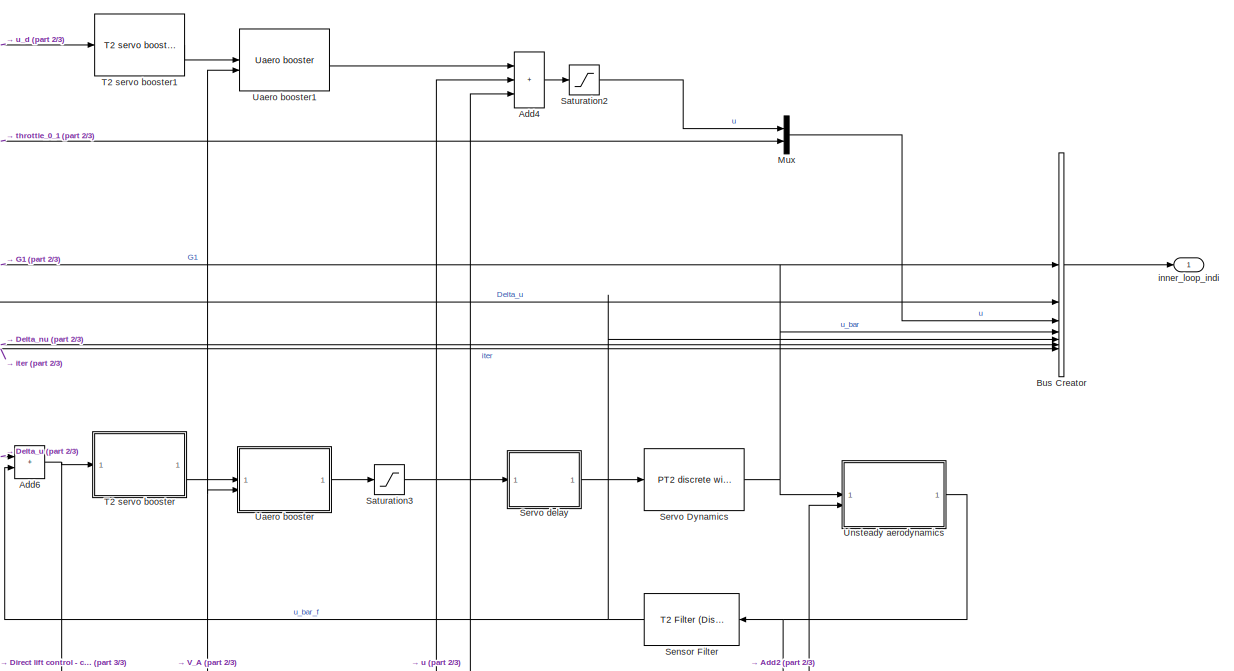
[diagram: LindiPlane Autopilot/Plane Inner Loop INDI and Control Allocation - part 1/3, top right region]
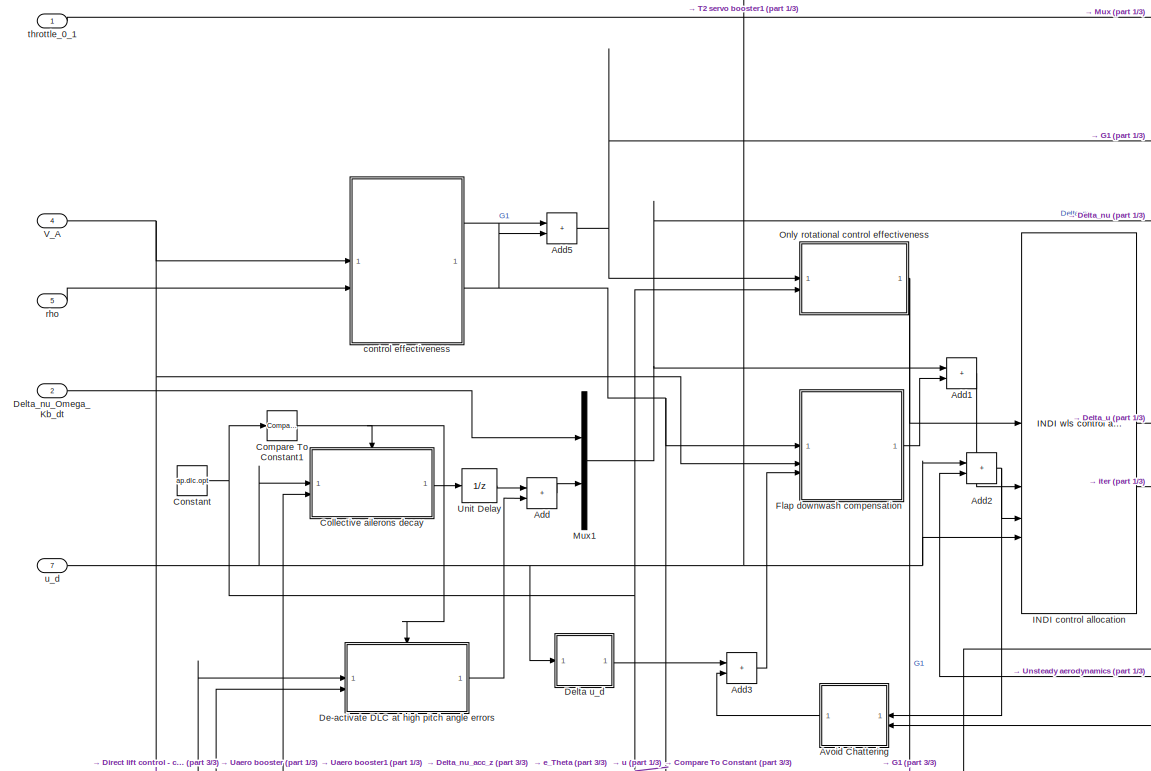
[diagram: LindiPlane Autopilot/Plane Inner Loop INDI and Control Allocation - part 2/3, middle left region]
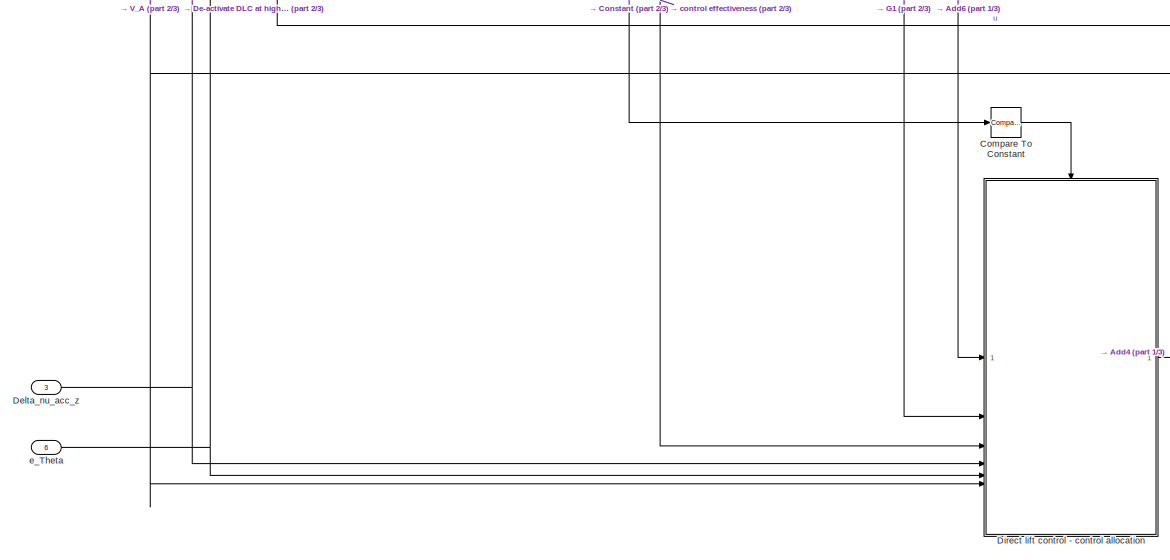
[diagram: LindiPlane Autopilot/Plane Inner Loop INDI and Control Allocation - part 3/3, bottom left region]
BLOCK [SubSystem] LindiPlane Autopilot/Plane Inner Loop INDI and Control Allocation
BLOCK [Sum] LindiPlane Autopilot/Plane Inner Loop INDI and Control Allocation/Add
  IconShape = rectangular
BLOCK [Sum] LindiPlane Autopilot/Plane Inner Loop INDI and Control Allocation/Add1
  IconShape = rectangular
BLOCK [Sum] LindiPlane Autopilot/Plane Inner Loop INDI and Control Allocation/Add2
  IconShape = rectangular
BLOCK [Sum] LindiPlane Autopilot/Plane Inner Loop INDI and Control Allocation/Add3
  IconShape = rectangular
BLOCK [Sum] LindiPlane Autopilot/Plane Inner Loop INDI and Control Allocation/Add4
  IconShape = rectangular
  Inputs = +++
BLOCK [Sum] LindiPlane Autopilot/Plane Inner Loop INDI and Control Allocation/Add5
  IconShape = rectangular
BLOCK [Sum] LindiPlane Autopilot/Plane Inner Loop INDI and Control Allocation/Add6
  IconShape = rectangular
BLOCK [SubSystem] LindiPlane Autopilot/Plane Inner Loop INDI and Control Allocation/Avoid Chattering
BLOCK [SubSystem] LindiPlane Autopilot/Plane Inner Loop INDI and Control Allocation/Avoid Chattering/Avoid Chattering
  ErrorFcn = Stateflow.Translate.translate
  PermitHierarchicalResolution = ExplicitOnly
  SFBlockType = MATLAB Function
  TreatAsAtomicUnit = on
BLOCK [Demux] LindiPlane Autopilot/Plane Inner Loop INDI and Control Allocation/Avoid Chattering/Avoid Chattering/ Demux 
  Outputs = 1
BLOCK [S-Function] LindiPlane Autopilot/Plane Inner Loop INDI and Control Allocation/Avoid Chattering/Avoid Chattering/ SFunction 
  EnableBusSupport = on
  FunctionName = sf_sfun
  Parameters = ap
  PortCounts = [2 2]
  SFcnIsStateOwnerBlock = off
  SFunctionDeploymentMode = off
  Tag = Stateflow S-Function 21
BLOCK [Terminator] LindiPlane Autopilot/Plane Inner Loop INDI and Control Allocation/Avoid Chattering/Avoid Chattering/ Terminator 
BLOCK [Outport] LindiPlane Autopilot/Plane Inner Loop INDI and Control Allocation/Avoid Chattering/Avoid Chattering/Delta_u
BLOCK [Inport] LindiPlane Autopilot/Plane Inner Loop INDI and Control Allocation/Avoid Chattering/Avoid Chattering/Delta_u 
  Port = 2
BLOCK [Inport] LindiPlane Autopilot/Plane Inner Loop INDI and Control Allocation/Avoid Chattering/Avoid Chattering/u
BLOCK [Inport] LindiPlane Autopilot/Plane Inner Loop INDI and Control Allocation/Avoid Chattering/Delta_u
  Port = 2
BLOCK [Outport] LindiPlane Autopilot/Plane Inner Loop INDI and Control Allocation/Avoid Chattering/Delta_u_last
BLOCK [UnitDelay] LindiPlane Autopilot/Plane Inner Loop INDI and Control Allocation/Avoid Chattering/Unit Delay1
  HasFrameUpgradeWarning = on
  NameLocation = top
  SampleTime = -1
BLOCK [Inport] LindiPlane Autopilot/Plane Inner Loop INDI and Control Allocation/Avoid Chattering/u
BLOCK [BusCreator] LindiPlane Autopilot/Plane Inner Loop INDI and Control Allocation/Bus Creator
  DisplayOption = bar
  InheritFromInputs = on
  Inputs = 7
BLOCK [SubSystem] LindiPlane Autopilot/Plane Inner Loop INDI and Control Allocation/Collective ailerons decay
BLOCK [Sum] LindiPlane Autopilot/Plane Inner Loop INDI and Control Allocation/Collective ailerons decay/Add1
  IconShape = rectangular
BLOCK [Constant] LindiPlane Autopilot/Plane Inner Loop INDI and Control Allocation/Collective ailerons decay/Constant2
  Value = ap.ca.u_d
BLOCK [Outport] LindiPlane Autopilot/Plane Inner Loop INDI and Control Allocation/Collective ailerons decay/Delta nu_acc_z
  InitialOutput = 0
  OutputWhenDisabled = reset
  VectorParamsAs1DForOutWhenUnconnected = off
BLOCK [Inport] LindiPlane Autopilot/Plane Inner Loop INDI and Control Allocation/Collective ailerons decay/Delta u_d
BLOCK [EnablePort] LindiPlane Autopilot/Plane Inner Loop INDI and Control Allocation/Collective ailerons decay/Enable
BLOCK [Gain] LindiPlane Autopilot/Plane Inner Loop INDI and Control Allocation/Collective ailerons decay/Gain
  Gain = -ap.dlc.flapdecay
  NameLocation = top
BLOCK [SubSystem] LindiPlane Autopilot/Plane Inner Loop INDI and Control Allocation/Collective ailerons decay/MATLAB Function2
  ErrorFcn = Stateflow.Translate.translate
  PermitHierarchicalResolution = ExplicitOnly
  SFBlockType = MATLAB Function
  TreatAsAtomicUnit = on
BLOCK [Demux] LindiPlane Autopilot/Plane Inner Loop INDI and Control Allocation/Collective ailerons decay/MATLAB Function2/ Demux 
  Outputs = 1
BLOCK [S-Function] LindiPlane Autopilot/Plane Inner Loop INDI and Control Allocation/Collective ailerons decay/MATLAB Function2/ SFunction 
  EnableBusSupport = off
  FunctionName = sf_sfun
  PortCounts = [2 2]
  SFcnIsStateOwnerBlock = off
  SFunctionDeploymentMode = off
  Tag = Stateflow S-Function 40
BLOCK [Terminator] LindiPlane Autopilot/Plane Inner Loop INDI and Control Allocation/Collective ailerons decay/MATLAB Function2/ Terminator 
BLOCK [Outport] LindiPlane Autopilot/Plane Inner Loop INDI and Control Allocation/Collective ailerons decay/MATLAB Function2/Delta_u_aileron_collective
  VectorParamsAs1DForOutWhenUnconnected = off
BLOCK [Inport] LindiPlane Autopilot/Plane Inner Loop INDI and Control Allocation/Collective ailerons decay/MATLAB Function2/u
BLOCK [Inport] LindiPlane Autopilot/Plane Inner Loop INDI and Control Allocation/Collective ailerons decay/MATLAB Function2/u_d
  Port = 2
BLOCK [Inport] LindiPlane Autopilot/Plane Inner Loop INDI and Control Allocation/Collective ailerons decay/u
  Port = 2
BLOCK [Reference] LindiPlane Autopilot/Plane Inner Loop INDI and Control Allocation/Compare To Constant  REF=simulink/Logic and Bit
Operations/Compare
To Constant
  SourceBlock = simulink/Logic and Bit\nOperations/Compare\nTo Constant
  SourceType = Compare To Constant
BLOCK [Reference] LindiPlane Autopilot/Plane Inner Loop INDI and Control Allocation/Compare To Constant1  REF=simulink/Logic and Bit
Operations/Compare
To Constant
  SourceBlock = simulink/Logic and Bit\nOperations/Compare\nTo Constant
  SourceType = Compare To Constant
BLOCK [Constant] LindiPlane Autopilot/Plane Inner Loop INDI and Control Allocation/Constant
  Value = ap.dlc.opt
BLOCK [SubSystem] LindiPlane Autopilot/Plane Inner Loop INDI and Control Allocation/De-activate DLC at high pitch angle errors
BLOCK [Constant] LindiPlane Autopilot/Plane Inner Loop INDI and Control Allocation/De-activate DLC at high pitch angle errors/Constant1
  Value = ap.dlc.maxptch
BLOCK [Inport] LindiPlane Autopilot/Plane Inner Loop INDI and Control Allocation/De-activate DLC at high pitch angle errors/Delta_nu_acc_z
BLOCK [Outport] LindiPlane Autopilot/Plane Inner Loop INDI and Control Allocation/De-activate DLC at high pitch angle errors/Delta_nu_acc_z_out
  InitialOutput = 0
  OutputWhenDisabled = reset
  VectorParamsAs1DForOutWhenUnconnected = off
BLOCK [EnablePort] LindiPlane Autopilot/Plane Inner Loop INDI and Control Allocation/De-activate DLC at high pitch angle errors/Enable
BLOCK [SubSystem] LindiPlane Autopilot/Plane Inner Loop INDI and Control Allocation/De-activate DLC at high pitch angle errors/MATLAB Function
  ErrorFcn = Stateflow.Translate.translate
  PermitHierarchicalResolution = ExplicitOnly
  SFBlockType = MATLAB Function
  TreatAsAtomicUnit = on
BLOCK [Demux] LindiPlane Autopilot/Plane Inner Loop INDI and Control Allocation/De-activate DLC at high pitch angle errors/MATLAB Function/ Demux 
  Outputs = 1
BLOCK [S-Function] LindiPlane Autopilot/Plane Inner Loop INDI and Control Allocation/De-activate DLC at high pitch angle errors/MATLAB Function/ SFunction 
  EnableBusSupport = off
  FunctionName = sf_sfun
  PortCounts = [3 2]
  SFcnIsStateOwnerBlock = off
  SFunctionDeploymentMode = off
  Tag = Stateflow S-Function 4
BLOCK [Terminator] LindiPlane Autopilot/Plane Inner Loop INDI and Control Allocation/De-activate DLC at high pitch angle errors/MATLAB Function/ Terminator 
BLOCK [Outport] LindiPlane Autopilot/Plane Inner Loop INDI and Control Allocation/De-activate DLC at high pitch angle errors/MATLAB Function/Delta_nu_acc_z
  VectorParamsAs1DForOutWhenUnconnected = off
BLOCK [Inport] LindiPlane Autopilot/Plane Inner Loop INDI and Control Allocation/De-activate DLC at high pitch angle errors/MATLAB Function/Delta_nu_acc_z 
BLOCK [Inport] LindiPlane Autopilot/Plane Inner Loop INDI and Control Allocation/De-activate DLC at high pitch angle errors/MATLAB Function/e_Theta
  Port = 3
BLOCK [Inport] LindiPlane Autopilot/Plane Inner Loop INDI and Control Allocation/De-activate DLC at high pitch angle errors/MATLAB Function/e_Theta_cutoff
  Port = 2
BLOCK [Inport] LindiPlane Autopilot/Plane Inner Loop INDI and Control Allocation/De-activate DLC at high pitch angle errors/e_Theta
  Port = 2
BLOCK [Reference] LindiPlane Autopilot/Plane Inner Loop INDI and Control Allocation/De-activate DLC at high pitch angle errors/rad2deg  REF=unit_conversions_lib/rad2deg  (lib defined in slx_ae2855d4d91e)
  SourceBlock = unit_conversions_lib/rad2deg
  SourceProductName = LADAC
BLOCK [SubSystem] LindiPlane Autopilot/Plane Inner Loop INDI and Control Allocation/Delta u_d
BLOCK [Sum] LindiPlane Autopilot/Plane Inner Loop INDI and Control Allocation/Delta u_d/Add5
  IconShape = rectangular
  Inputs = +-
BLOCK [Outport] LindiPlane Autopilot/Plane Inner Loop INDI and Control Allocation/Delta u_d/Delta_u
  VectorParamsAs1DForOutWhenUnconnected = off
BLOCK [Reference] LindiPlane Autopilot/Plane Inner Loop INDI and Control Allocation/Delta u_d/Servo and Sensor Filter Delay  REF=$bdroot/LindiPlane Autopilot/Roll Angle Controller/Servo and Sensor Filter Delay
  SourceBlock = $bdroot/LindiPlane Autopilot/Roll Angle Controller/Servo and Sensor Filter Delay
  SourceType = SubSystem
BLOCK [Terminator] LindiPlane Autopilot/Plane Inner Loop INDI and Control Allocation/Delta u_d/Terminator
BLOCK [Terminator] LindiPlane Autopilot/Plane Inner Loop INDI and Control Allocation/Delta u_d/Terminator1
BLOCK [Inport] LindiPlane Autopilot/Plane Inner Loop INDI and Control Allocation/Delta u_d/u
BLOCK [Inport] LindiPlane Autopilot/Plane Inner Loop INDI and Control Allocation/Delta_nu_Omega_Kb_dt
  Port = 2
BLOCK [Inport] LindiPlane Autopilot/Plane Inner Loop INDI and Control Allocation/Delta_nu_acc_z
  Port = 3
BLOCK [SubSystem] LindiPlane Autopilot/Plane Inner Loop INDI and Control Allocation/Direct lift control - control allocation
BLOCK [Sum] LindiPlane Autopilot/Plane Inner Loop INDI and Control Allocation/Direct lift control - control allocation/Add1
  IconShape = rectangular
BLOCK [Sum] LindiPlane Autopilot/Plane Inner Loop INDI and Control Allocation/Direct lift control - control allocation/Add2
  IconShape = rectangular
BLOCK [Sum] LindiPlane Autopilot/Plane Inner Loop INDI and Control Allocation/Direct lift control - control allocation/Add3
  IconShape = rectangular
BLOCK [Sum] LindiPlane Autopilot/Plane Inner Loop INDI and Control Allocation/Direct lift control - control allocation/Add4
  IconShape = rectangular
  Inputs = +-
BLOCK [Reference] LindiPlane Autopilot/Plane Inner Loop INDI and Control Allocation/Direct lift control - control allocation/Avoid Chattering  REF=$bdroot/LindiPlane Autopilot/Plane Inner Loop INDI and Control Allocation/Avoid Chattering
  SourceBlock = $bdroot/LindiPlane Autopilot/Plane Inner Loop INDI and Control Allocation/Avoid Chattering
  SourceType = SubSystem
BLOCK [Reference] LindiPlane Autopilot/Plane Inner Loop INDI and Control Allocation/Direct lift control - control allocation/Collective ailerons decay  REF=$bdroot/LindiPlane Autopilot/Plane Inner Loop INDI and Control Allocation/Collective ailerons decay
  SourceBlock = $bdroot/LindiPlane Autopilot/Plane Inner Loop INDI and Control Allocation/Collective ailerons decay
  SourceType = SubSystem
BLOCK [Constant] LindiPlane Autopilot/Plane Inner Loop INDI and Control Allocation/Direct lift control - control allocation/Constant
  Value = ap.dlc.opt
BLOCK [Constant] LindiPlane Autopilot/Plane Inner Loop INDI and Control Allocation/Direct lift control - control allocation/Constant1
  Value = zeros(3,1)
BLOCK [Constant] LindiPlane Autopilot/Plane Inner Loop INDI and Control Allocation/Direct lift control - control allocation/Constant2
BLOCK [Reference] LindiPlane Autopilot/Plane Inner Loop INDI and Control Allocation/Direct lift control - control allocation/De-activate DLC at high pitch angle errors  REF=$bdroot/LindiPlane Autopilot/Plane Inner Loop INDI and Control Allocation/De-activate DLC at high pitch angle errors
  SourceBlock = $bdroot/LindiPlane Autopilot/Plane Inner Loop INDI and Control Allocation/De-activate DLC at high pitch angle errors
  SourceType = SubSystem
BLOCK [Inport] LindiPlane Autopilot/Plane Inner Loop INDI and Control Allocation/Direct lift control - control allocation/Delta_nu_acc_z
  Port = 4
BLOCK [EnablePort] LindiPlane Autopilot/Plane Inner Loop INDI and Control Allocation/Direct lift control - control allocation/Enable
  StatesWhenEnabling = reset
BLOCK [Reference] LindiPlane Autopilot/Plane Inner Loop INDI and Control Allocation/Direct lift control - control allocation/Flap downwash compensation  REF=$bdroot/LindiPlane Autopilot/Plane Inner Loop INDI and Control Allocation/Flap downwash compensation
  SourceBlock = $bdroot/LindiPlane Autopilot/Plane Inner Loop INDI and Control Allocation/Flap downwash compensation
BLOCK [Inport] LindiPlane Autopilot/Plane Inner Loop INDI and Control Allocation/Direct lift control - control allocation/G1
  Port = 2
BLOCK [Gain] LindiPlane Autopilot/Plane Inner Loop INDI and Control Allocation/Direct lift control - control allocation/Gain
  Gain = 0
BLOCK [Inport] LindiPlane Autopilot/Plane Inner Loop INDI and Control Allocation/Direct lift control - control allocation/Gdw
  Port = 3
BLOCK [Reference] LindiPlane Autopilot/Plane Inner Loop INDI and Control Allocation/Direct lift control - control allocation/INDI control allocation  REF=ca_lib/INDI wls control allocation  (lib defined in slx_0f34462aa2fc)
  SourceBlock = ca_lib/INDI wls control allocation
  SourceProductName = LADAC
BLOCK [Mux] LindiPlane Autopilot/Plane Inner Loop INDI and Control Allocation/Direct lift control - control allocation/Mux1
  DisplayOption = bar
  Inputs = 2
BLOCK [Saturate] LindiPlane Autopilot/Plane Inner Loop INDI and Control Allocation/Direct lift control - control allocation/Saturation1
  LowerLimit = ap.ca.u_min
  UpperLimit = ap.ca.u_max
BLOCK [Reference] LindiPlane Autopilot/Plane Inner Loop INDI and Control Allocation/Direct lift control - control allocation/Sensor Filter  REF=$bdroot/LindiPlane Autopilot/Measurement Filtering/Acc Filter
  SourceBlock = $bdroot/LindiPlane Autopilot/Measurement Filtering/Acc Filter
  SourceType = SubSystem
BLOCK [Reference] LindiPlane Autopilot/Plane Inner Loop INDI and Control Allocation/Direct lift control - control allocation/Servo Dynamics  REF=filters_lib/PT2 discrete with saturation  (lib defined in slx_a584fcc4ebc5)
  SourceBlock = filters_lib/PT2 discrete with saturation
  SourceProductName = LADAC
  SourceType = PT2 discrete with saturation
BLOCK [Reference] LindiPlane Autopilot/Plane Inner Loop INDI and Control Allocation/Direct lift control - control allocation/Servo delay1  REF=$bdroot/LindiPlane Autopilot/Plane Inner Loop INDI and Control Allocation/Servo delay
  SourceBlock = $bdroot/LindiPlane Autopilot/Plane Inner Loop INDI and Control Allocation/Servo delay
  SourceType = SubSystem
BLOCK [SubSystem] LindiPlane Autopilot/Plane Inner Loop INDI and Control Allocation/Direct lift control - control allocation/Set Delta_nu_acc_z
  ErrorFcn = Stateflow.Translate.translate
  PermitHierarchicalResolution = ExplicitOnly
  SFBlockType = MATLAB Function
  TreatAsAtomicUnit = on
BLOCK [Demux] LindiPlane Autopilot/Plane Inner Loop INDI and Control Allocation/Direct lift control - control allocation/Set Delta_nu_acc_z/ Demux 
  Outputs = 1
BLOCK [S-Function] LindiPlane Autopilot/Plane Inner Loop INDI and Control Allocation/Direct lift control - control allocation/Set Delta_nu_acc_z/ SFunction 
  EnableBusSupport = off
  FunctionName = sf_sfun
  PortCounts = [2 2]
  SFcnIsStateOwnerBlock = off
  SFunctionDeploymentMode = off
  Tag = Stateflow S-Function 39
BLOCK [Terminator] LindiPlane Autopilot/Plane Inner Loop INDI and Control Allocation/Direct lift control - control allocation/Set Delta_nu_acc_z/ Terminator 
BLOCK [Inport] LindiPlane Autopilot/Plane Inner Loop INDI and Control Allocation/Direct lift control - control allocation/Set Delta_nu_acc_z/DLC_opt
BLOCK [Outport] LindiPlane Autopilot/Plane Inner Loop INDI and Control Allocation/Direct lift control - control allocation/Set Delta_nu_acc_z/Delta_nu_acc_z
  VectorParamsAs1DForOutWhenUnconnected = off
BLOCK [Inport] LindiPlane Autopilot/Plane Inner Loop INDI and Control Allocation/Direct lift control - control allocation/Set Delta_nu_acc_z/Delta_nu_acc_z 
  Port = 2
BLOCK [Reference] LindiPlane Autopilot/Plane Inner Loop INDI and Control Allocation/Direct lift control - control allocation/T2 servo booster1  REF=$bdroot/LindiPlane Autopilot/Plane Inner Loop INDI and Control Allocation/T2 servo booster
  SourceBlock = $bdroot/LindiPlane Autopilot/Plane Inner Loop INDI and Control Allocation/T2 servo booster
BLOCK [Reference] LindiPlane Autopilot/Plane Inner Loop INDI and Control Allocation/Direct lift control - control allocation/Uaero booster  REF=$bdroot/LindiPlane Autopilot/Plane Inner Loop INDI and Control Allocation/Uaero booster
  SourceBlock = $bdroot/LindiPlane Autopilot/Plane Inner Loop INDI and Control Allocation/Uaero booster
BLOCK [UnitDelay] LindiPlane Autopilot/Plane Inner Loop INDI and Control Allocation/Direct lift control - control allocation/Unit Delay
  HasFrameUpgradeWarning = on
  SampleTime = -1
BLOCK [Reference] LindiPlane Autopilot/Plane Inner Loop INDI and Control Allocation/Direct lift control - control allocation/Unsteady aerodynamics  REF=$bdroot/LindiPlane Autopilot/Plane Inner Loop INDI and Control Allocation/Unsteady aerodynamics
  SourceBlock = $bdroot/LindiPlane Autopilot/Plane Inner Loop INDI and Control Allocation/Unsteady aerodynamics
BLOCK [Inport] LindiPlane Autopilot/Plane Inner Loop INDI and Control Allocation/Direct lift control - control allocation/V
  Port = 6
BLOCK [Inport] LindiPlane Autopilot/Plane Inner Loop INDI and Control Allocation/Direct lift control - control allocation/e_Theta
  Port = 5
BLOCK [Outport] LindiPlane Autopilot/Plane Inner Loop INDI and Control Allocation/Direct lift control - control allocation/u
  InitialOutput = 0
  OutputWhenDisabled = reset
  VectorParamsAs1DForOutWhenUnconnected = off
BLOCK [Inport] LindiPlane Autopilot/Plane Inner Loop INDI and Control Allocation/Direct lift control - control allocation/u_in
BLOCK [SubSystem] LindiPlane Autopilot/Plane Inner Loop INDI and Control Allocation/Flap downwash compensation
BLOCK [Sum] LindiPlane Autopilot/Plane Inner Loop INDI and Control Allocation/Flap downwash compensation/Add3
  IconShape = rectangular
  Inputs = +-
BLOCK [Constant] LindiPlane Autopilot/Plane Inner Loop INDI and Control Allocation/Flap downwash compensation/Constant1
  Value = ap.eig.x_h
BLOCK [Outport] LindiPlane Autopilot/Plane Inner Loop INDI and Control Allocation/Flap downwash compensation/Delta_nu_dw
  VectorParamsAs1DForOutWhenUnconnected = off
BLOCK [Inport] LindiPlane Autopilot/Plane Inner Loop INDI and Control Allocation/Flap downwash compensation/Delta_u
  Port = 3
BLOCK [Product] LindiPlane Autopilot/Plane Inner Loop INDI and Control Allocation/Flap downwash compensation/Divide
  Inputs = */
BLOCK [Inport] LindiPlane Autopilot/Plane Inner Loop INDI and Control Allocation/Flap downwash compensation/Gdw
BLOCK [SubSystem] LindiPlane Autopilot/Plane Inner Loop INDI and Control Allocation/Flap downwash compensation/Gdw6 to Gdw4
  ErrorFcn = Stateflow.Translate.translate
  PermitHierarchicalResolution = ExplicitOnly
  SFBlockType = MATLAB Function
  TreatAsAtomicUnit = on
BLOCK [Demux] LindiPlane Autopilot/Plane Inner Loop INDI and Control Allocation/Flap downwash compensation/Gdw6 to Gdw4/ Demux 
  Outputs = 1
BLOCK [S-Function] LindiPlane Autopilot/Plane Inner Loop INDI and Control Allocation/Flap downwash compensation/Gdw6 to Gdw4/ SFunction 
  EnableBusSupport = off
  FunctionName = sf_sfun
  PortCounts = [1 2]
  SFcnIsStateOwnerBlock = off
  SFunctionDeploymentMode = off
  Tag = Stateflow S-Function 5
BLOCK [Terminator] LindiPlane Autopilot/Plane Inner Loop INDI and Control Allocation/Flap downwash compensation/Gdw6 to Gdw4/ Terminator 
BLOCK [Outport] LindiPlane Autopilot/Plane Inner Loop INDI and Control Allocation/Flap downwash compensation/Gdw6 to Gdw4/Gdw4
BLOCK [Inport] LindiPlane Autopilot/Plane Inner Loop INDI and Control Allocation/Flap downwash compensation/Gdw6 to Gdw4/Gdw6
BLOCK [Product] LindiPlane Autopilot/Plane Inner Loop INDI and Control Allocation/Flap downwash compensation/MatrixMultiply
  Multiplication = Matrix(*)
BLOCK [Reference] LindiPlane Autopilot/Plane Inner Loop INDI and Control Allocation/Flap downwash compensation/PT1 discrete with saturations1  REF=filters_lib/PT1 discrete with saturations  (lib defined in slx_a584fcc4ebc5)
  SourceBlock = filters_lib/PT1 discrete with saturations
  SourceProductName = LADAC
  SourceType = PT1 discrete with saturation
BLOCK [Inport] LindiPlane Autopilot/Plane Inner Loop INDI and Control Allocation/Flap downwash compensation/V
  Port = 2
BLOCK [Reference] LindiPlane Autopilot/Plane Inner Loop INDI and Control Allocation/INDI control allocation  REF=ca_lib/INDI wls control allocation  (lib defined in slx_0f34462aa2fc)
  SourceBlock = ca_lib/INDI wls control allocation
  SourceProductName = LADAC
BLOCK [Mux] LindiPlane Autopilot/Plane Inner Loop INDI and Control Allocation/Mux
  DisplayOption = bar
  Inputs = 2
BLOCK [Mux] LindiPlane Autopilot/Plane Inner Loop INDI and Control Allocation/Mux1
  DisplayOption = bar
  Inputs = 2
BLOCK [SubSystem] LindiPlane Autopilot/Plane Inner Loop INDI and Control Allocation/Only rotational control effectiveness
  ErrorFcn = Stateflow.Translate.translate
  PermitHierarchicalResolution = ExplicitOnly
  SFBlockType = MATLAB Function
  TreatAsAtomicUnit = on
BLOCK [Demux] LindiPlane Autopilot/Plane Inner Loop INDI and Control Allocation/Only rotational control effectiveness/ Demux 
  Outputs = 1
BLOCK [S-Function] LindiPlane Autopilot/Plane Inner Loop INDI and Control Allocation/Only rotational control effectiveness/ SFunction 
  EnableBusSupport = off
  FunctionName = sf_sfun
  PortCounts = [2 2]
  SFcnIsStateOwnerBlock = off
  SFunctionDeploymentMode = off
  Tag = Stateflow S-Function 10
BLOCK [Terminator] LindiPlane Autopilot/Plane Inner Loop INDI and Control Allocation/Only rotational control effectiveness/ Terminator 
BLOCK [Inport] LindiPlane Autopilot/Plane Inner Loop INDI and Control Allocation/Only rotational control effectiveness/DLC_opt
  Port = 2
BLOCK [Inport] LindiPlane Autopilot/Plane Inner Loop INDI and Control Allocation/Only rotational control effectiveness/G
BLOCK [Outport] LindiPlane Autopilot/Plane Inner Loop INDI and Control Allocation/Only rotational control effectiveness/G4xX
  VectorParamsAs1DForOutWhenUnconnected = off
BLOCK [Saturate] LindiPlane Autopilot/Plane Inner Loop INDI and Control Allocation/Saturation2
  LowerLimit = ap.ca.u_min
  UpperLimit = ap.ca.u_max
BLOCK [Saturate] LindiPlane Autopilot/Plane Inner Loop INDI and Control Allocation/Saturation3
  LowerLimit = ap.ca.u_min
  UpperLimit = ap.ca.u_max
BLOCK [Reference] LindiPlane Autopilot/Plane Inner Loop INDI and Control Allocation/Sensor Filter  REF=filters_lib/T2 Filter (Discrete)  (lib defined in slx_a584fcc4ebc5)
  SourceBlock = filters_lib/T2 Filter (Discrete)
  SourceProductName = LADAC
  SourceType = T2Filter
BLOCK [Reference] LindiPlane Autopilot/Plane Inner Loop INDI and Control Allocation/Servo Dynamics  REF=filters_lib/PT2 discrete with saturation  (lib defined in slx_a584fcc4ebc5)
  SourceBlock = filters_lib/PT2 discrete with saturation
  SourceProductName = LADAC
  SourceType = PT2 discrete with saturation
BLOCK [SubSystem] LindiPlane Autopilot/Plane Inner Loop INDI and Control Allocation/Servo delay
BLOCK [Constant] LindiPlane Autopilot/Plane Inner Loop INDI and Control Allocation/Servo delay/Constant
  Value = ap.servo.delay
BLOCK [Constant] LindiPlane Autopilot/Plane Inner Loop INDI and Control Allocation/Servo delay/Constant1
  Value = ap_notune.ts
BLOCK [Delay] LindiPlane Autopilot/Plane Inner Loop INDI and Control Allocation/Servo delay/Delay
  DelayLength = 1
  InitialConditionSource = Input port
  InputPortMap = u0,p4
BLOCK [Delay] LindiPlane Autopilot/Plane Inner Loop INDI and Control Allocation/Servo delay/Delay1
  DelayLength = 1
  InitialConditionSource = Input port
  InputPortMap = u0,p4
BLOCK [Delay] LindiPlane Autopilot/Plane Inner Loop INDI and Control Allocation/Servo delay/Delay2
  DelayLength = 1
  InitialConditionSource = Input port
  InputPortMap = u0,p4
BLOCK [Delay] LindiPlane Autopilot/Plane Inner Loop INDI and Control Allocation/Servo delay/Delay3
  DelayLength = 1
  InitialConditionSource = Input port
  InputPortMap = u0,p4
BLOCK [SubSystem] LindiPlane Autopilot/Plane Inner Loop INDI and Control Allocation/Servo delay/MATLAB Function
  ErrorFcn = Stateflow.Translate.translate
  PermitHierarchicalResolution = ExplicitOnly
  SFBlockType = MATLAB Function
  TreatAsAtomicUnit = on
BLOCK [Demux] LindiPlane Autopilot/Plane Inner Loop INDI and Control Allocation/Servo delay/MATLAB Function/ Demux 
  Outputs = 1
BLOCK [S-Function] LindiPlane Autopilot/Plane Inner Loop INDI and Control Allocation/Servo delay/MATLAB Function/ SFunction 
  EnableBusSupport = off
  FunctionName = sf_sfun
  PortCounts = [7 2]
  SFcnIsStateOwnerBlock = off
  SFunctionDeploymentMode = off
  Tag = Stateflow S-Function 2
BLOCK [Terminator] LindiPlane Autopilot/Plane Inner Loop INDI and Control Allocation/Servo delay/MATLAB Function/ Terminator 
BLOCK [Inport] LindiPlane Autopilot/Plane Inner Loop INDI and Control Allocation/Servo delay/MATLAB Function/delay
  Port = 6
BLOCK [Inport] LindiPlane Autopilot/Plane Inner Loop INDI and Control Allocation/Servo delay/MATLAB Function/ts
  Port = 7
BLOCK [Inport] LindiPlane Autopilot/Plane Inner Loop INDI and Control Allocation/Servo delay/MATLAB Function/u0
BLOCK [Inport] LindiPlane Autopilot/Plane Inner Loop INDI and Control Allocation/Servo delay/MATLAB Function/u1
  Port = 2
BLOCK [Inport] LindiPlane Autopilot/Plane Inner Loop INDI and Control Allocation/Servo delay/MATLAB Function/u2
  Port = 3
BLOCK [Inport] LindiPlane Autopilot/Plane Inner Loop INDI and Control Allocation/Servo delay/MATLAB Function/u3
  Port = 4
BLOCK [Inport] LindiPlane Autopilot/Plane Inner Loop INDI and Control Allocation/Servo delay/MATLAB Function/u4
  Port = 5
BLOCK [Outport] LindiPlane Autopilot/Plane Inner Loop INDI and Control Allocation/Servo delay/MATLAB Function/u_delay
  VectorParamsAs1DForOutWhenUnconnected = off
BLOCK [Inport] LindiPlane Autopilot/Plane Inner Loop INDI and Control Allocation/Servo delay/u
BLOCK [Outport] LindiPlane Autopilot/Plane Inner Loop INDI and Control Allocation/Servo delay/u_delay
  VectorParamsAs1DForOutWhenUnconnected = off
BLOCK [SubSystem] LindiPlane Autopilot/Plane Inner Loop INDI and Control Allocation/T2 servo booster
BLOCK [Sum] LindiPlane Autopilot/Plane Inner Loop INDI and Control Allocation/T2 servo booster/Add2
  IconShape = rectangular
  Inputs = +++
BLOCK [Sum] LindiPlane Autopilot/Plane Inner Loop INDI and Control Allocation/T2 servo booster/Add3
  IconShape = rectangular
  Inputs = +++
BLOCK [DiscreteIntegrator] LindiPlane Autopilot/Plane Inner Loop INDI and Control Allocation/T2 servo booster/Discrete-Time Integrator1
  ICPrevOutput = DiscIntNeverNeededParam
  ICPrevScaledInput = DiscIntNeverNeededParam
  InitialConditionSetting = Auto
  SampleTime = -1
BLOCK [DiscreteIntegrator] LindiPlane Autopilot/Plane Inner Loop INDI and Control Allocation/T2 servo booster/Discrete-Time Integrator2
  ICPrevOutput = DiscIntNeverNeededParam
  ICPrevScaledInput = DiscIntNeverNeededParam
  InitialConditionSetting = Auto
  SampleTime = -1
BLOCK [Gain] LindiPlane Autopilot/Plane Inner Loop INDI and Control Allocation/T2 servo booster/Gain4
  Gain = -b*omega*b*omega
  NameLocation = top
BLOCK [Gain] LindiPlane Autopilot/Plane Inner Loop INDI and Control Allocation/T2 servo booster/Gain5
  Gain = -2*d*(b*omega)
  NameLocation = top
BLOCK [Gain] LindiPlane Autopilot/Plane Inner Loop INDI and Control Allocation/T2 servo booster/Gain6
  Gain = (2*d/omega-2*d/(b*omega)/(omega*omega)*b*omega*b*omega)*b*omega*b*omega
BLOCK [Gain] LindiPlane Autopilot/Plane Inner Loop INDI and Control Allocation/T2 servo booster/Gain7
  Gain = b*b
BLOCK [Gain] LindiPlane Autopilot/Plane Inner Loop INDI and Control Allocation/T2 servo booster/Gain8
  Gain = (1-1/(omega*omega)*b*omega*b*omega)*b*omega*b*omega
BLOCK [Inport] LindiPlane Autopilot/Plane Inner Loop INDI and Control Allocation/T2 servo booster/u
BLOCK [Outport] LindiPlane Autopilot/Plane Inner Loop INDI and Control Allocation/T2 servo booster/u_boost
  VectorParamsAs1DForOutWhenUnconnected = off
BLOCK [Reference] LindiPlane Autopilot/Plane Inner Loop INDI and Control Allocation/T2 servo booster1  REF=$bdroot/LindiPlane Autopilot/Plane Inner Loop INDI and Control Allocation/T2 servo booster
  SourceBlock = $bdroot/LindiPlane Autopilot/Plane Inner Loop INDI and Control Allocation/T2 servo booster
BLOCK [SubSystem] LindiPlane Autopilot/Plane Inner Loop INDI and Control Allocation/Uaero booster
BLOCK [Reference] LindiPlane Autopilot/Plane Inner Loop INDI and Control Allocation/Uaero booster/Compare To Constant  REF=simulink/Logic and Bit
Operations/Compare
To Constant
  SourceBlock = simulink/Logic and Bit\nOperations/Compare\nTo Constant
  SourceType = Compare To Constant
BLOCK [Constant] LindiPlane Autopilot/Plane Inner Loop INDI and Control Allocation/Uaero booster/Constant
  Value = uaero_use
BLOCK [Logic] LindiPlane Autopilot/Plane Inner Loop INDI and Control Allocation/Uaero booster/Logical Operator
  AllPortsSameDT = off
  Operator = NOT
  OutDataTypeStr = boolean
BLOCK [Merge] LindiPlane Autopilot/Plane Inner Loop INDI and Control Allocation/Uaero booster/Merge
BLOCK [SubSystem] LindiPlane Autopilot/Plane Inner Loop INDI and Control Allocation/Uaero booster/Pass-through
BLOCK [EnablePort] LindiPlane Autopilot/Plane Inner Loop INDI and Control Allocation/Uaero booster/Pass-through/Enable
BLOCK [Inport] LindiPlane Autopilot/Plane Inner Loop INDI and Control Allocation/Uaero booster/Pass-through/u_in
BLOCK [Outport] LindiPlane Autopilot/Plane Inner Loop INDI and Control Allocation/Uaero booster/Pass-through/u_out
  VectorParamsAs1DForOutWhenUnconnected = off
BLOCK [SubSystem] LindiPlane Autopilot/Plane Inner Loop INDI and Control Allocation/Uaero booster/Uaero booster
BLOCK [EnablePort] LindiPlane Autopilot/Plane Inner Loop INDI and Control Allocation/Uaero booster/Uaero booster/Enable
BLOCK [SubSystem] LindiPlane Autopilot/Plane Inner Loop INDI and Control Allocation/Uaero booster/Uaero booster/Uaero booster1
BLOCK [Reference] LindiPlane Autopilot/Plane Inner Loop INDI and Control Allocation/Uaero booster/Uaero booster/Uaero booster1/Compare To Constant1  REF=simulink/Logic and Bit
Operations/Compare
To Constant
  SourceBlock = simulink/Logic and Bit\nOperations/Compare\nTo Constant
  SourceType = Compare To Constant
BLOCK [Reference] LindiPlane Autopilot/Plane Inner Loop INDI and Control Allocation/Uaero booster/Uaero booster/Uaero booster1/Compare To Constant2  REF=simulink/Logic and Bit
Operations/Compare
To Constant
  SourceBlock = simulink/Logic and Bit\nOperations/Compare\nTo Constant
  SourceType = Compare To Constant
BLOCK [Constant] LindiPlane Autopilot/Plane Inner Loop INDI and Control Allocation/Uaero booster/Uaero booster/Uaero booster1/Constant
  Value = opt
BLOCK [SubSystem] LindiPlane Autopilot/Plane Inner Loop INDI and Control Allocation/Uaero booster/Uaero booster/Uaero booster1/Eliminate Uaero i
BLOCK [EnablePort] LindiPlane Autopilot/Plane Inner Loop INDI and Control Allocation/Uaero booster/Uaero booster/Uaero booster1/Eliminate Uaero i/Enable
BLOCK [Inport] LindiPlane Autopilot/Plane Inner Loop INDI and Control Allocation/Uaero booster/Uaero booster/Uaero booster1/Eliminate Uaero i/u
BLOCK [Outport] LindiPlane Autopilot/Plane Inner Loop INDI and Control Allocation/Uaero booster/Uaero booster/Uaero booster1/Eliminate Uaero i/u_ref
  VectorParamsAs1DForOutWhenUnconnected = off
BLOCK [Logic] LindiPlane Autopilot/Plane Inner Loop INDI and Control Allocation/Uaero booster/Uaero booster/Uaero booster1/Logical Operator
  AllPortsSameDT = off
  Operator = NOT
  OutDataTypeStr = boolean
BLOCK [Logic] LindiPlane Autopilot/Plane Inner Loop INDI and Control Allocation/Uaero booster/Uaero booster/Uaero booster1/Logical Operator1
  AllPortsSameDT = off
  Operator = NOT
  OutDataTypeStr = boolean
BLOCK [Merge] LindiPlane Autopilot/Plane Inner Loop INDI and Control Allocation/Uaero booster/Uaero booster/Uaero booster1/Merge
BLOCK [Merge] LindiPlane Autopilot/Plane Inner Loop INDI and Control Allocation/Uaero booster/Uaero booster/Uaero booster1/Merge1
BLOCK [SubSystem] LindiPlane Autopilot/Plane Inner Loop INDI and Control Allocation/Uaero booster/Uaero booster/Uaero booster1/Pass-through
BLOCK [EnablePort] LindiPlane Autopilot/Plane Inner Loop INDI and Control Allocation/Uaero booster/Uaero booster/Uaero booster1/Pass-through/Enable
BLOCK [Inport] LindiPlane Autopilot/Plane Inner Loop INDI and Control Allocation/Uaero booster/Uaero booster/Uaero booster1/Pass-through/u
BLOCK [Outport] LindiPlane Autopilot/Plane Inner Loop INDI and Control Allocation/Uaero booster/Uaero booster/Uaero booster1/Pass-through/u_ref
  VectorParamsAs1DForOutWhenUnconnected = off
BLOCK [SubSystem] LindiPlane Autopilot/Plane Inner Loop INDI and Control Allocation/Uaero booster/Uaero booster/Uaero booster1/Uaero Inversion i
BLOCK [Sum] LindiPlane Autopilot/Plane Inner Loop INDI and Control Allocation/Uaero booster/Uaero booster/Uaero booster1/Uaero Inversion i/Add
  IconShape = rectangular
BLOCK [Sum] LindiPlane Autopilot/Plane Inner Loop INDI and Control Allocation/Uaero booster/Uaero booster/Uaero booster1/Uaero Inversion i/Add1
  IconShape = rectangular
BLOCK [Constant] LindiPlane Autopilot/Plane Inner Loop INDI and Control Allocation/Uaero booster/Uaero booster/Uaero booster1/Uaero Inversion i/Constant
  Value = uaero.fdepth
BLOCK [Constant] LindiPlane Autopilot/Plane Inner Loop INDI and Control Allocation/Uaero booster/Uaero booster/Uaero booster1/Uaero Inversion i/Constant1
  Value = uaero.c
BLOCK [DiscreteIntegrator] LindiPlane Autopilot/Plane Inner Loop INDI and Control Allocation/Uaero booster/Uaero booster/Uaero booster1/Uaero Inversion i/Discrete-Time Integrator
  ICPrevOutput = DiscIntNeverNeededParam
  ICPrevScaledInput = DiscIntNeverNeededParam
  InitialConditionSetting = Auto
  SampleTime = -1
BLOCK [EnablePort] LindiPlane Autopilot/Plane Inner Loop INDI and Control Allocation/Uaero booster/Uaero booster/Uaero booster1/Uaero Inversion i/Enable
BLOCK [Gain] LindiPlane Autopilot/Plane Inner Loop INDI and Control Allocation/Uaero booster/Uaero booster/Uaero booster1/Uaero Inversion i/Gain2
BLOCK [Product] LindiPlane Autopilot/Plane Inner Loop INDI and Control Allocation/Uaero booster/Uaero booster/Uaero booster1/Uaero Inversion i/Product
BLOCK [Product] LindiPlane Autopilot/Plane Inner Loop INDI and Control Allocation/Uaero booster/Uaero booster/Uaero booster1/Uaero Inversion i/Product1
  NameLocation = top
BLOCK [Product] LindiPlane Autopilot/Plane Inner Loop INDI and Control Allocation/Uaero booster/Uaero booster/Uaero booster1/Uaero Inversion i/Product2
BLOCK [SubSystem] LindiPlane Autopilot/Plane Inner Loop INDI and Control Allocation/Uaero booster/Uaero booster/Uaero booster1/Uaero Inversion i/State-Space Model Parameters
  ErrorFcn = Stateflow.Translate.translate
  PermitHierarchicalResolution = ExplicitOnly
  SFBlockType = MATLAB Function
  TreatAsAtomicUnit = on
BLOCK [Demux] LindiPlane Autopilot/Plane Inner Loop INDI and Control Allocation/Uaero booster/Uaero booster/Uaero booster1/Uaero Inversion i/State-Space Model Parameters/ Demux 
  Outputs = 1
BLOCK [S-Function] LindiPlane Autopilot/Plane Inner Loop INDI and Control Allocation/Uaero booster/Uaero booster/Uaero booster1/Uaero Inversion i/State-Space Model Parameters/ SFunction 
  EnableBusSupport = off
  FunctionName = sf_sfun
  Parameters = Aj,bi
  PortCounts = [3 4]
  SFcnIsStateOwnerBlock = off
  SFunctionDeploymentMode = off
  Tag = Stateflow S-Function 1
BLOCK [Terminator] LindiPlane Autopilot/Plane Inner Loop INDI and Control Allocation/Uaero booster/Uaero booster/Uaero booster1/Uaero Inversion i/State-Space Model Parameters/ Terminator 
BLOCK [Outport] LindiPlane Autopilot/Plane Inner Loop INDI and Control Allocation/Uaero booster/Uaero booster/Uaero booster1/Uaero Inversion i/State-Space Model Parameters/A
  VectorParamsAs1DForOutWhenUnconnected = off
BLOCK [Outport] LindiPlane Autopilot/Plane Inner Loop INDI and Control Allocation/Uaero booster/Uaero booster/Uaero booster1/Uaero Inversion i/State-Space Model Parameters/B
  Port = 2
  VectorParamsAs1DForOutWhenUnconnected = off
BLOCK [Outport] LindiPlane Autopilot/Plane Inner Loop INDI and Control Allocation/Uaero booster/Uaero booster/Uaero booster1/Uaero Inversion i/State-Space Model Parameters/D
  Port = 3
  VectorParamsAs1DForOutWhenUnconnected = off
BLOCK [Inport] LindiPlane Autopilot/Plane Inner Loop INDI and Control Allocation/Uaero booster/Uaero booster/Uaero booster1/Uaero Inversion i/State-Space Model Parameters/E
  Port = 2
BLOCK [Inport] LindiPlane Autopilot/Plane Inner Loop INDI and Control Allocation/Uaero booster/Uaero booster/Uaero booster1/Uaero Inversion i/State-Space Model Parameters/V_A
BLOCK [Inport] LindiPlane Autopilot/Plane Inner Loop INDI and Control Allocation/Uaero booster/Uaero booster/Uaero booster1/Uaero Inversion i/State-Space Model Parameters/c
  Port = 3
BLOCK [Inport] LindiPlane Autopilot/Plane Inner Loop INDI and Control Allocation/Uaero booster/Uaero booster/Uaero booster1/Uaero Inversion i/V_A
  Port = 2
BLOCK [Inport] LindiPlane Autopilot/Plane Inner Loop INDI and Control Allocation/Uaero booster/Uaero booster/Uaero booster1/Uaero Inversion i/u
BLOCK [Outport] LindiPlane Autopilot/Plane Inner Loop INDI and Control Allocation/Uaero booster/Uaero booster/Uaero booster1/Uaero Inversion i/u_boost
  VectorParamsAs1DForOutWhenUnconnected = off
BLOCK [SubSystem] LindiPlane Autopilot/Plane Inner Loop INDI and Control Allocation/Uaero booster/Uaero booster/Uaero booster1/Uaero Reference i
BLOCK [Sum] LindiPlane Autopilot/Plane Inner Loop INDI and Control Allocation/Uaero booster/Uaero booster/Uaero booster1/Uaero Reference i/Add
  IconShape = rectangular
BLOCK [Sum] LindiPlane Autopilot/Plane Inner Loop INDI and Control Allocation/Uaero booster/Uaero booster/Uaero booster1/Uaero Reference i/Add1
  IconShape = rectangular
BLOCK [DiscreteIntegrator] LindiPlane Autopilot/Plane Inner Loop INDI and Control Allocation/Uaero booster/Uaero booster/Uaero booster1/Uaero Reference i/Discrete-Time Integrator
  ICPrevOutput = DiscIntNeverNeededParam
  ICPrevScaledInput = DiscIntNeverNeededParam
  InitialConditionSetting = Auto
  SampleTime = -1
BLOCK [EnablePort] LindiPlane Autopilot/Plane Inner Loop INDI and Control Allocation/Uaero booster/Uaero booster/Uaero booster1/Uaero Reference i/Enable
BLOCK [Gain] LindiPlane Autopilot/Plane Inner Loop INDI and Control Allocation/Uaero booster/Uaero booster/Uaero booster1/Uaero Reference i/Gain2
BLOCK [Product] LindiPlane Autopilot/Plane Inner Loop INDI and Control Allocation/Uaero booster/Uaero booster/Uaero booster1/Uaero Reference i/Product
BLOCK [Product] LindiPlane Autopilot/Plane Inner Loop INDI and Control Allocation/Uaero booster/Uaero booster/Uaero booster1/Uaero Reference i/Product1
  NameLocation = top
BLOCK [Product] LindiPlane Autopilot/Plane Inner Loop INDI and Control Allocation/Uaero booster/Uaero booster/Uaero booster1/Uaero Reference i/Product2
BLOCK [SubSystem] LindiPlane Autopilot/Plane Inner Loop INDI and Control Allocation/Uaero booster/Uaero booster/Uaero booster1/Uaero Reference i/State-Space Model Parameters
  ErrorFcn = Stateflow.Translate.translate
  PermitHierarchicalResolution = ExplicitOnly
  SFBlockType = MATLAB Function
  TreatAsAtomicUnit = on
BLOCK [Demux] LindiPlane Autopilot/Plane Inner Loop INDI and Control Allocation/Uaero booster/Uaero booster/Uaero booster1/Uaero Reference i/State-Space Model Parameters/ Demux 
  Outputs = 1
BLOCK [Ground] LindiPlane Autopilot/Plane Inner Loop INDI and Control Allocation/Uaero booster/Uaero booster/Uaero booster1/Uaero Reference i/State-Space Model Parameters/ Ground 
BLOCK [S-Function] LindiPlane Autopilot/Plane Inner Loop INDI and Control Allocation/Uaero booster/Uaero booster/Uaero booster1/Uaero Reference i/State-Space Model Parameters/ SFunction 
  EnableBusSupport = off
  FunctionName = sf_sfun
  Parameters = Aj,E,V,bi,c
  PortCounts = [1 4]
  SFcnIsStateOwnerBlock = off
  SFunctionDeploymentMode = off
  Tag = Stateflow S-Function 3
BLOCK [Terminator] LindiPlane Autopilot/Plane Inner Loop INDI and Control Allocation/Uaero booster/Uaero booster/Uaero booster1/Uaero Reference i/State-Space Model Parameters/ Terminator 
BLOCK [Outport] LindiPlane Autopilot/Plane Inner Loop INDI and Control Allocation/Uaero booster/Uaero booster/Uaero booster1/Uaero Reference i/State-Space Model Parameters/A
  VectorParamsAs1DForOutWhenUnconnected = off
BLOCK [Outport] LindiPlane Autopilot/Plane Inner Loop INDI and Control Allocation/Uaero booster/Uaero booster/Uaero booster1/Uaero Reference i/State-Space Model Parameters/B
  Port = 2
  VectorParamsAs1DForOutWhenUnconnected = off
BLOCK [Outport] LindiPlane Autopilot/Plane Inner Loop INDI and Control Allocation/Uaero booster/Uaero booster/Uaero booster1/Uaero Reference i/State-Space Model Parameters/D
  Port = 3
  VectorParamsAs1DForOutWhenUnconnected = off
BLOCK [Inport] LindiPlane Autopilot/Plane Inner Loop INDI and Control Allocation/Uaero booster/Uaero booster/Uaero booster1/Uaero Reference i/u
BLOCK [Outport] LindiPlane Autopilot/Plane Inner Loop INDI and Control Allocation/Uaero booster/Uaero booster/Uaero booster1/Uaero Reference i/u_boost
  VectorParamsAs1DForOutWhenUnconnected = off
BLOCK [Inport] LindiPlane Autopilot/Plane Inner Loop INDI and Control Allocation/Uaero booster/Uaero booster/Uaero booster1/V_A
  Port = 2
BLOCK [Inport] LindiPlane Autopilot/Plane Inner Loop INDI and Control Allocation/Uaero booster/Uaero booster/Uaero booster1/u
BLOCK [Outport] LindiPlane Autopilot/Plane Inner Loop INDI and Control Allocation/Uaero booster/Uaero booster/Uaero booster1/u_boost
  VectorParamsAs1DForOutWhenUnconnected = off
BLOCK [Reference] LindiPlane Autopilot/Plane Inner Loop INDI and Control Allocation/Uaero booster/Uaero booster/Uaero booster2  REF=$bdroot/LindiPlane Autopilot/Plane Inner Loop INDI and Control Allocation/Uaero booster/Uaero booster/Uaero booster1
  SourceBlock = $bdroot/LindiPlane Autopilot/Plane Inner Loop INDI and Control Allocation/Uaero booster/Uaero booster/Uaero booster1
BLOCK [Inport] LindiPlane Autopilot/Plane Inner Loop INDI and Control Allocation/Uaero booster/Uaero booster/V_A
  Port = 2
BLOCK [Inport] LindiPlane Autopilot/Plane Inner Loop INDI and Control Allocation/Uaero booster/Uaero booster/u
BLOCK [Outport] LindiPlane Autopilot/Plane Inner Loop INDI and Control Allocation/Uaero booster/Uaero booster/u_boost
  VectorParamsAs1DForOutWhenUnconnected = off
BLOCK [Inport] LindiPlane Autopilot/Plane Inner Loop INDI and Control Allocation/Uaero booster/V_A
  Port = 2
BLOCK [Inport] LindiPlane Autopilot/Plane Inner Loop INDI and Control Allocation/Uaero booster/u
BLOCK [Outport] LindiPlane Autopilot/Plane Inner Loop INDI and Control Allocation/Uaero booster/u_boost
  VectorParamsAs1DForOutWhenUnconnected = off
BLOCK [Reference] LindiPlane Autopilot/Plane Inner Loop INDI and Control Allocation/Uaero booster1  REF=$bdroot/LindiPlane Autopilot/Plane Inner Loop INDI and Control Allocation/Uaero booster
  SourceBlock = $bdroot/LindiPlane Autopilot/Plane Inner Loop INDI and Control Allocation/Uaero booster
BLOCK [UnitDelay] LindiPlane Autopilot/Plane Inner Loop INDI and Control Allocation/Unit Delay
  HasFrameUpgradeWarning = on
  SampleTime = -1
BLOCK [SubSystem] LindiPlane Autopilot/Plane Inner Loop INDI and Control Allocation/Unsteady aerodynamics
BLOCK [Reference] LindiPlane Autopilot/Plane Inner Loop INDI and Control Allocation/Unsteady aerodynamics/Compare To Constant  REF=simulink/Logic and Bit
Operations/Compare
To Constant
  SourceBlock = simulink/Logic and Bit\nOperations/Compare\nTo Constant
  SourceType = Compare To Constant
BLOCK [Constant] LindiPlane Autopilot/Plane Inner Loop INDI and Control Allocation/Unsteady aerodynamics/Constant
  Value = uaero_use
BLOCK [Logic] LindiPlane Autopilot/Plane Inner Loop INDI and Control Allocation/Unsteady aerodynamics/Logical Operator
  AllPortsSameDT = off
  Operator = NOT
  OutDataTypeStr = boolean
BLOCK [Merge] LindiPlane Autopilot/Plane Inner Loop INDI and Control Allocation/Unsteady aerodynamics/Merge
BLOCK [SubSystem] LindiPlane Autopilot/Plane Inner Loop INDI and Control Allocation/Unsteady aerodynamics/Pass-through
BLOCK [EnablePort] LindiPlane Autopilot/Plane Inner Loop INDI and Control Allocation/Unsteady aerodynamics/Pass-through/Enable
BLOCK [Inport] LindiPlane Autopilot/Plane Inner Loop INDI and Control Allocation/Unsteady aerodynamics/Pass-through/u_in
BLOCK [Outport] LindiPlane Autopilot/Plane Inner Loop INDI and Control Allocation/Unsteady aerodynamics/Pass-through/u_out
  VectorParamsAs1DForOutWhenUnconnected = off
BLOCK [SubSystem] LindiPlane Autopilot/Plane Inner Loop INDI and Control Allocation/Unsteady aerodynamics/Unsteady aerodynamics
BLOCK [Constant] LindiPlane Autopilot/Plane Inner Loop INDI and Control Allocation/Unsteady aerodynamics/Unsteady aerodynamics/Constant
  Value = ap.uaero.c
  VectorParams1D = off
BLOCK [Constant] LindiPlane Autopilot/Plane Inner Loop INDI and Control Allocation/Unsteady aerodynamics/Unsteady aerodynamics/Constant1
  Value = ap.uaero.fdepth
  VectorParams1D = off
BLOCK [Constant] LindiPlane Autopilot/Plane Inner Loop INDI and Control Allocation/Unsteady aerodynamics/Unsteady aerodynamics/Constant2
BLOCK [DiscreteIntegrator] LindiPlane Autopilot/Plane Inner Loop INDI and Control Allocation/Unsteady aerodynamics/Unsteady aerodynamics/Discrete-Time Integrator
  ICPrevOutput = DiscIntNeverNeededParam
  ICPrevScaledInput = DiscIntNeverNeededParam
  InitialConditionSetting = Auto
  InitialConditionSource = external
  NameLocation = top
  SampleTime = -1
BLOCK [Product] LindiPlane Autopilot/Plane Inner Loop INDI and Control Allocation/Unsteady aerodynamics/Unsteady aerodynamics/Divide
  Inputs = */
BLOCK [EnablePort] LindiPlane Autopilot/Plane Inner Loop INDI and Control Allocation/Unsteady aerodynamics/Unsteady aerodynamics/Enable
BLOCK [SubSystem] LindiPlane Autopilot/Plane Inner Loop INDI and Control Allocation/Unsteady aerodynamics/Unsteady aerodynamics/MATLAB Function
  ErrorFcn = Stateflow.Translate.translate
  PermitHierarchicalResolution = ExplicitOnly
  SFBlockType = MATLAB Function
  TreatAsAtomicUnit = on
BLOCK [Demux] LindiPlane Autopilot/Plane Inner Loop INDI and Control Allocation/Unsteady aerodynamics/Unsteady aerodynamics/MATLAB Function/ Demux 
  Outputs = 1
BLOCK [S-Function] LindiPlane Autopilot/Plane Inner Loop INDI and Control Allocation/Unsteady aerodynamics/Unsteady aerodynamics/MATLAB Function/ SFunction 
  EnableBusSupport = off
  FunctionName = sf_sfun
  PortCounts = [6 4]
  SFcnIsStateOwnerBlock = off
  SFunctionDeploymentMode = off
  Tag = Stateflow S-Function 30
BLOCK [Terminator] LindiPlane Autopilot/Plane Inner Loop INDI and Control Allocation/Unsteady aerodynamics/Unsteady aerodynamics/MATLAB Function/ Terminator 
BLOCK [Inport] LindiPlane Autopilot/Plane Inner Loop INDI and Control Allocation/Unsteady aerodynamics/Unsteady aerodynamics/MATLAB Function/C_L_alpha
  Port = 3
BLOCK [Inport] LindiPlane Autopilot/Plane Inner Loop INDI and Control Allocation/Unsteady aerodynamics/Unsteady aerodynamics/MATLAB Function/E
  Port = 4
BLOCK [Inport] LindiPlane Autopilot/Plane Inner Loop INDI and Control Allocation/Unsteady aerodynamics/Unsteady aerodynamics/MATLAB Function/V
BLOCK [Outport] LindiPlane Autopilot/Plane Inner Loop INDI and Control Allocation/Unsteady aerodynamics/Unsteady aerodynamics/MATLAB Function/alpha_deta
  Port = 2
  VectorParamsAs1DForOutWhenUnconnected = off
BLOCK [Inport] LindiPlane Autopilot/Plane Inner Loop INDI and Control Allocation/Unsteady aerodynamics/Unsteady aerodynamics/MATLAB Function/c
  Port = 2
BLOCK [Outport] LindiPlane Autopilot/Plane Inner Loop INDI and Control Allocation/Unsteady aerodynamics/Unsteady aerodynamics/MATLAB Function/c_L_flap
  VectorParamsAs1DForOutWhenUnconnected = off
BLOCK [Inport] LindiPlane Autopilot/Plane Inner Loop INDI and Control Allocation/Unsteady aerodynamics/Unsteady aerodynamics/MATLAB Function/eta
  Port = 6
BLOCK [Inport] LindiPlane Autopilot/Plane Inner Loop INDI and Control Allocation/Unsteady aerodynamics/Unsteady aerodynamics/MATLAB Function/x
  Port = 5
BLOCK [Outport] LindiPlane Autopilot/Plane Inner Loop INDI and Control Allocation/Unsteady aerodynamics/Unsteady aerodynamics/MATLAB Function/x_dt
  Port = 3
  VectorParamsAs1DForOutWhenUnconnected = off
BLOCK [SubSystem] LindiPlane Autopilot/Plane Inner Loop INDI and Control Allocation/Unsteady aerodynamics/Unsteady aerodynamics/MATLAB Function1
  ErrorFcn = Stateflow.Translate.translate
  PermitHierarchicalResolution = ExplicitOnly
  SFBlockType = MATLAB Function
  TreatAsAtomicUnit = on
BLOCK [Demux] LindiPlane Autopilot/Plane Inner Loop INDI and Control Allocation/Unsteady aerodynamics/Unsteady aerodynamics/MATLAB Function1/ Demux 
  Outputs = 1
BLOCK [S-Function] LindiPlane Autopilot/Plane Inner Loop INDI and Control Allocation/Unsteady aerodynamics/Unsteady aerodynamics/MATLAB Function1/ SFunction 
  EnableBusSupport = off
  FunctionName = sf_sfun
  PortCounts = [1 2]
  SFcnIsStateOwnerBlock = off
  SFunctionDeploymentMode = off
  Tag = Stateflow S-Function 31
BLOCK [Terminator] LindiPlane Autopilot/Plane Inner Loop INDI and Control Allocation/Unsteady aerodynamics/Unsteady aerodynamics/MATLAB Function1/ Terminator 
BLOCK [Inport] LindiPlane Autopilot/Plane Inner Loop INDI and Control Allocation/Unsteady aerodynamics/Unsteady aerodynamics/MATLAB Function1/alpha
BLOCK [Outport] LindiPlane Autopilot/Plane Inner Loop INDI and Control Allocation/Unsteady aerodynamics/Unsteady aerodynamics/MATLAB Function1/x0
  VectorParamsAs1DForOutWhenUnconnected = off
BLOCK [Reshape] LindiPlane Autopilot/Plane Inner Loop INDI and Control Allocation/Unsteady aerodynamics/Unsteady aerodynamics/Reshape
  OutputDimensionality = Row vector (2-D)
BLOCK [Reshape] LindiPlane Autopilot/Plane Inner Loop INDI and Control Allocation/Unsteady aerodynamics/Unsteady aerodynamics/Reshape1
BLOCK [Inport] LindiPlane Autopilot/Plane Inner Loop INDI and Control Allocation/Unsteady aerodynamics/Unsteady aerodynamics/V
  Port = 2
BLOCK [Inport] LindiPlane Autopilot/Plane Inner Loop INDI and Control Allocation/Unsteady aerodynamics/Unsteady aerodynamics/u
BLOCK [Outport] LindiPlane Autopilot/Plane Inner Loop INDI and Control Allocation/Unsteady aerodynamics/Unsteady aerodynamics/u_unst
  VectorParamsAs1DForOutWhenUnconnected = off
BLOCK [Inport] LindiPlane Autopilot/Plane Inner Loop INDI and Control Allocation/Unsteady aerodynamics/V
  Port = 2
BLOCK [Inport] LindiPlane Autopilot/Plane Inner Loop INDI and Control Allocation/Unsteady aerodynamics/u
BLOCK [Outport] LindiPlane Autopilot/Plane Inner Loop INDI and Control Allocation/Unsteady aerodynamics/u_unst
  VectorParamsAs1DForOutWhenUnconnected = off
BLOCK [Inport] LindiPlane Autopilot/Plane Inner Loop INDI and Control Allocation/V_A
  Port = 4
BLOCK [SubSystem] LindiPlane Autopilot/Plane Inner Loop INDI and Control Allocation/control effectiveness
BLOCK [Constant] LindiPlane Autopilot/Plane Inner Loop INDI and Control Allocation/control effectiveness/Constant
  Value = ap.ceb.scale
BLOCK [Display] LindiPlane Autopilot/Plane Inner Loop INDI and Control Allocation/control effectiveness/Display
  Decimation = 1
BLOCK [Outport] LindiPlane Autopilot/Plane Inner Loop INDI and Control Allocation/control effectiveness/G1
  VectorParamsAs1DForOutWhenUnconnected = off
BLOCK [Gain] LindiPlane Autopilot/Plane Inner Loop INDI and Control Allocation/control effectiveness/Gain
  Gain = 0.5
BLOCK [Outport] LindiPlane Autopilot/Plane Inner Loop INDI and Control Allocation/control effectiveness/Gdw
  Port = 2
  VectorParamsAs1DForOutWhenUnconnected = off
BLOCK [Product] LindiPlane Autopilot/Plane Inner Loop INDI and Control Allocation/control effectiveness/Product
BLOCK [Product] LindiPlane Autopilot/Plane Inner Loop INDI and Control Allocation/control effectiveness/Product1
BLOCK [Product] LindiPlane Autopilot/Plane Inner Loop INDI and Control Allocation/control effectiveness/Product2
BLOCK [Product] LindiPlane Autopilot/Plane Inner Loop INDI and Control Allocation/control effectiveness/Product3
BLOCK [Product] LindiPlane Autopilot/Plane Inner Loop INDI and Control Allocation/control effectiveness/Product5
BLOCK [Math] LindiPlane Autopilot/Plane Inner Loop INDI and Control Allocation/control effectiveness/Square
  Operator = square
  SignedPower = on
BLOCK [Inport] LindiPlane Autopilot/Plane Inner Loop INDI and Control Allocation/control effectiveness/V
BLOCK [SubSystem] LindiPlane Autopilot/Plane Inner Loop INDI and Control Allocation/control effectiveness/indiCeFlapFix
  ErrorFcn = Stateflow.Translate.translate
  PermitHierarchicalResolution = ExplicitOnly
  SFBlockType = MATLAB Function
  TreatAsAtomicUnit = on
BLOCK [Demux] LindiPlane Autopilot/Plane Inner Loop INDI and Control Allocation/control effectiveness/indiCeFlapFix/ Demux 
  Outputs = 1
BLOCK [Ground] LindiPlane Autopilot/Plane Inner Loop INDI and Control Allocation/control effectiveness/indiCeFlapFix/ Ground 
BLOCK [S-Function] LindiPlane Autopilot/Plane Inner Loop INDI and Control Allocation/control effectiveness/indiCeFlapFix/ SFunction 
  EnableBusSupport = off
  FunctionName = sf_sfun
  Parameters = ceb,cef,eig
  PortCounts = [1 3]
  SFcnIsStateOwnerBlock = off
  SFunctionDeploymentMode = off
  Tag = Stateflow S-Function 13
BLOCK [Terminator] LindiPlane Autopilot/Plane Inner Loop INDI and Control Allocation/control effectiveness/indiCeFlapFix/ Terminator 
BLOCK [Outport] LindiPlane Autopilot/Plane Inner Loop INDI and Control Allocation/control effectiveness/indiCeFlapFix/G10
  VectorParamsAs1DForOutWhenUnconnected = off
BLOCK [Outport] LindiPlane Autopilot/Plane Inner Loop INDI and Control Allocation/control effectiveness/indiCeFlapFix/Gdw0
  Port = 2
BLOCK [Inport] LindiPlane Autopilot/Plane Inner Loop INDI and Control Allocation/control effectiveness/rho
  Port = 2
BLOCK [Inport] LindiPlane Autopilot/Plane Inner Loop INDI and Control Allocation/e_Theta
  Port = 6
BLOCK [Outport] LindiPlane Autopilot/Plane Inner Loop INDI and Control Allocation/inner_loop_indi
  VectorParamsAs1DForOutWhenUnconnected = off
BLOCK [Inport] LindiPlane Autopilot/Plane Inner Loop INDI and Control Allocation/rho
  Port = 5
BLOCK [Inport] LindiPlane Autopilot/Plane Inner Loop INDI and Control Allocation/throttle_0_1
BLOCK [Inport] LindiPlane Autopilot/Plane Inner Loop INDI and Control Allocation/u_d
  Port = 7
BLOCK [SubSystem] LindiPlane Autopilot/Roll Angle Controller
BLOCK [Sum] LindiPlane Autopilot/Roll Angle Controller/Add1
  Inputs = |++
BLOCK [Sum] LindiPlane Autopilot/Roll Angle Controller/Add2
  Inputs = |+-
BLOCK [Sum] LindiPlane Autopilot/Roll Angle Controller/Add3
  Inputs = |++
BLOCK [SubSystem] LindiPlane Autopilot/Roll Angle Controller/Avoid Angle Steps
  ErrorFcn = Stateflow.Translate.translate
  PermitHierarchicalResolution = ExplicitOnly
  SFBlockType = MATLAB Function
  TreatAsAtomicUnit = on
BLOCK [Demux] LindiPlane Autopilot/Roll Angle Controller/Avoid Angle Steps/ Demux 
  Outputs = 1
BLOCK [S-Function] LindiPlane Autopilot/Roll Angle Controller/Avoid Angle Steps/ SFunction 
  EnableBusSupport = off
  FunctionName = sf_sfun
  PortCounts = [2 2]
  SFcnIsStateOwnerBlock = off
  SFunctionDeploymentMode = off
  Tag = Stateflow S-Function 14
BLOCK [Terminator] LindiPlane Autopilot/Roll Angle Controller/Avoid Angle Steps/ Terminator 
BLOCK [Inport] LindiPlane Autopilot/Roll Angle Controller/Avoid Angle Steps/angle
BLOCK [Outport] LindiPlane Autopilot/Roll Angle Controller/Avoid Angle Steps/angle_cum
  VectorParamsAs1DForOutWhenUnconnected = off
BLOCK [Inport] LindiPlane Autopilot/Roll Angle Controller/Avoid Angle Steps/angle_last
  Port = 2
BLOCK [BusCreator] LindiPlane Autopilot/Roll Angle Controller/Bus Creator
  DisplayOption = bar
  InheritFromInputs = on
  Inputs = 2
BLOCK [BusCreator] LindiPlane Autopilot/Roll Angle Controller/Bus Creator1
  DisplayOption = bar
  InheritFromInputs = on
  Inputs = 5
BLOCK [BusCreator] LindiPlane Autopilot/Roll Angle Controller/Bus Creator2
  DisplayOption = bar
  InheritFromInputs = on
  Inputs = 3
BLOCK [SubSystem] LindiPlane Autopilot/Roll Angle Controller/Feedback Gains
BLOCK [Sum] LindiPlane Autopilot/Roll Angle Controller/Feedback Gains/Add
  IconShape = rectangular
  Inputs = 3
BLOCK [Sum] LindiPlane Autopilot/Roll Angle Controller/Feedback Gains/Add1
  Inputs = |+-
BLOCK [Sum] LindiPlane Autopilot/Roll Angle Controller/Feedback Gains/Add2
  Inputs = |+-
BLOCK [Demux] LindiPlane Autopilot/Roll Angle Controller/Feedback Gains/Demux
  Outputs = 3
BLOCK [Demux] LindiPlane Autopilot/Roll Angle Controller/Feedback Gains/Demux1
  Outputs = 3
BLOCK [Gain] LindiPlane Autopilot/Roll Angle Controller/Feedback Gains/Gain1
  Gain = ap.atc.k.rang
BLOCK [Gain] LindiPlane Autopilot/Roll Angle Controller/Feedback Gains/Gain3
  Gain = ap.atc.k.rrat
BLOCK [Gain] LindiPlane Autopilot/Roll Angle Controller/Feedback Gains/Gain5
  Gain = ap.atc.k.racc
BLOCK [Reference] LindiPlane Autopilot/Roll Angle Controller/Feedback Gains/angle error  REF=angles_lib/angle error  (lib defined in slx_87bf087a0d78)
  SourceBlock = angles_lib/angle error
  SourceProductName = LADAC
  SourceType = SubSystem
BLOCK [Inport] LindiPlane Autopilot/Roll Angle Controller/Feedback Gains/measure
  Port = 2
BLOCK [Outport] LindiPlane Autopilot/Roll Angle Controller/Feedback Gains/nu_cntrl
  VectorParamsAs1DForOutWhenUnconnected = off
BLOCK [Inport] LindiPlane Autopilot/Roll Angle Controller/Feedback Gains/reference
BLOCK [Reference] LindiPlane Autopilot/Roll Angle Controller/Feedback Gains/wrap angle  REF=angles_lib/wrap angle  (lib defined in slx_87bf087a0d78)
  SourceBlock = angles_lib/wrap angle
  SourceProductName = LADAC
  SourceType = SubSystem
BLOCK [Reference] LindiPlane Autopilot/Roll Angle Controller/Feedback Gains/wrap angle1  REF=angles_lib/wrap angle  (lib defined in slx_87bf087a0d78)
  SourceBlock = angles_lib/wrap angle
  SourceProductName = LADAC
  SourceType = SubSystem
BLOCK [Mux] LindiPlane Autopilot/Roll Angle Controller/Mux1
  DisplayOption = bar
  Inputs = 3
BLOCK [Mux] LindiPlane Autopilot/Roll Angle Controller/Mux2
  DisplayOption = bar
  Inputs = 3
BLOCK [Reference] LindiPlane Autopilot/Roll Angle Controller/PT2 discrete with saturation1  REF=filters_lib/PT2 discrete with saturation  (lib defined in slx_a584fcc4ebc5)
  SourceBlock = filters_lib/PT2 discrete with saturation
  SourceProductName = LADAC
  SourceType = PT2 discrete with saturation
BLOCK [Inport] LindiPlane Autopilot/Roll Angle Controller/Phi_cmd
BLOCK [Inport] LindiPlane Autopilot/Roll Angle Controller/Phi_meas
  Port = 2
BLOCK [SubSystem] LindiPlane Autopilot/Roll Angle Controller/Roll damping inversion
BLOCK [Sum] LindiPlane Autopilot/Roll Angle Controller/Roll damping inversion/Add2
  Inputs = |+-
BLOCK [Outport] LindiPlane Autopilot/Roll Angle Controller/Roll damping inversion/Delta_nu_p_dt
  VectorParamsAs1DForOutWhenUnconnected = off
BLOCK [Gain] LindiPlane Autopilot/Roll Angle Controller/Roll damping inversion/Gain
  Gain = ap.eig.b/2
BLOCK [Gain] LindiPlane Autopilot/Roll Angle Controller/Roll damping inversion/Gain1
  Gain = ap.eig.clp
BLOCK [Gain] LindiPlane Autopilot/Roll Angle Controller/Roll damping inversion/Gain2
  Gain = 0.5
BLOCK [Gain] LindiPlane Autopilot/Roll Angle Controller/Roll damping inversion/Gain3
  Gain = ap.eig.s*ap.eig.b
BLOCK [Gain] LindiPlane Autopilot/Roll Angle Controller/Roll damping inversion/Gain4
  Gain = 1/ap.ceb.ixx
BLOCK [Product] LindiPlane Autopilot/Roll Angle Controller/Roll damping inversion/Product
BLOCK [Product] LindiPlane Autopilot/Roll Angle Controller/Roll damping inversion/Product1
BLOCK [Reference] LindiPlane Autopilot/Roll Angle Controller/Roll damping inversion/Servo and Sensor Filter Delay  REF=$bdroot/LindiPlane Autopilot/Roll Angle Controller/Servo and Sensor Filter Delay
  SourceBlock = $bdroot/LindiPlane Autopilot/Roll Angle Controller/Servo and Sensor Filter Delay
  SourceType = SubSystem
BLOCK [Terminator] LindiPlane Autopilot/Roll Angle Controller/Roll damping inversion/Terminator
BLOCK [Terminator] LindiPlane Autopilot/Roll Angle Controller/Roll damping inversion/Terminator1
BLOCK [Inport] LindiPlane Autopilot/Roll Angle Controller/Roll damping inversion/V
  Port = 2
BLOCK [Inport] LindiPlane Autopilot/Roll Angle Controller/Roll damping inversion/p_ref
BLOCK [Inport] LindiPlane Autopilot/Roll Angle Controller/Roll damping inversion/rho
  Port = 3
BLOCK [Saturate] LindiPlane Autopilot/Roll Angle Controller/Saturation
  LowerLimit = -ap.atc.rm.rangmax*pi/180
  UpperLimit = ap.atc.rm.rangmax*pi/180
BLOCK [Scope] LindiPlane Autopilot/Roll Angle Controller/Scope
  Floating = off
  NumInputPorts = 2
  ScopeSpecificationString = Simulink.scopes.TimeScopeBlockCfg('CurrentConfiguration', extmgr.ConfigurationSet(extmgr.Configuration('Core','General UI',true),extmgr.Configuration('Core','Source UI',true),extmgr.Configuration('Sources','WiredSimulink',true,'DataLoggingVariableName','ScopeData2'),extmgr.Configuration('Visuals','Time Domain',true),extmgr.Configuration('Tools','Plot Navigation',true),extmgr.Configuration('Tools',...<+40ch>
BLOCK [Scope] LindiPlane Autopilot/Roll Angle Controller/Scope1
  Floating = off
  NumInputPorts = 2
  ScopeSpecificationString = Simulink.scopes.TimeScopeBlockCfg('CurrentConfiguration', extmgr.ConfigurationSet(extmgr.Configuration('Core','General UI',true),extmgr.Configuration('Core','Source UI',true),extmgr.Configuration('Sources','WiredSimulink',true,'DataLoggingVariableName','ScopeData11'),extmgr.Configuration('Visuals','Time Domain',true,'SerializedDisplays',{struct('MinYLimReal','-0.00418','MaxYLimReal','0.00271','YLa...<+1473ch>
BLOCK [SubSystem] LindiPlane Autopilot/Roll Angle Controller/Servo and Sensor Filter Delay
BLOCK [Reference] LindiPlane Autopilot/Roll Angle Controller/Servo and Sensor Filter Delay/PT2 discrete with saturation5  REF=filters_lib/PT2 discrete with saturation  (lib defined in slx_a584fcc4ebc5)
  SourceBlock = filters_lib/PT2 discrete with saturation
  SourceProductName = LADAC
  SourceType = PT2 discrete with saturation
BLOCK [Reshape] LindiPlane Autopilot/Roll Angle Controller/Servo and Sensor Filter Delay/Reshape
BLOCK [Reshape] LindiPlane Autopilot/Roll Angle Controller/Servo and Sensor Filter Delay/Reshape1
BLOCK [Reshape] LindiPlane Autopilot/Roll Angle Controller/Servo and Sensor Filter Delay/Reshape2
BLOCK [Reference] LindiPlane Autopilot/Roll Angle Controller/Servo and Sensor Filter Delay/Sensor Filter  REF=filters_lib/T2 Filter (Discrete)  (lib defined in slx_a584fcc4ebc5)
  SourceBlock = filters_lib/T2 Filter (Discrete)
  SourceProductName = LADAC
  SourceType = T2Filter
BLOCK [Reference] LindiPlane Autopilot/Roll Angle Controller/Servo and Sensor Filter Delay/Servo delay  REF=$bdroot/LindiPlane Autopilot/Plane Inner Loop INDI and Control Allocation/Servo delay
  SourceBlock = $bdroot/LindiPlane Autopilot/Plane Inner Loop INDI and Control Allocation/Servo delay
  SourceType = SubSystem
BLOCK [SubSystem] LindiPlane Autopilot/Roll Angle Controller/Servo and Sensor Filter Delay/Unsteady Aerodynamics
BLOCK [Sum] LindiPlane Autopilot/Roll Angle Controller/Servo and Sensor Filter Delay/Unsteady Aerodynamics/Add
  IconShape = rectangular
  Inputs = +++
BLOCK [Gain] LindiPlane Autopilot/Roll Angle Controller/Servo and Sensor Filter Delay/Unsteady Aerodynamics/Gain
  Gain = 0.5*ap.uaero.fdref
BLOCK [SubSystem] LindiPlane Autopilot/Roll Angle Controller/Servo and Sensor Filter Delay/Unsteady Aerodynamics/Uaero 1
BLOCK [Reference] LindiPlane Autopilot/Roll Angle Controller/Servo and Sensor Filter Delay/Unsteady Aerodynamics/Uaero 1/Compare To Constant3  REF=simulink/Logic and Bit
Operations/Compare
To Constant
  SourceBlock = simulink/Logic and Bit\nOperations/Compare\nTo Constant
  SourceType = Compare To Constant
BLOCK [Reference] LindiPlane Autopilot/Roll Angle Controller/Servo and Sensor Filter Delay/Unsteady Aerodynamics/Uaero 1/Compare To Constant4  REF=simulink/Logic and Bit
Operations/Compare
To Constant
  SourceBlock = simulink/Logic and Bit\nOperations/Compare\nTo Constant
  SourceType = Compare To Constant
BLOCK [Constant] LindiPlane Autopilot/Roll Angle Controller/Servo and Sensor Filter Delay/Unsteady Aerodynamics/Uaero 1/Constant2
  Value = uaero_use
BLOCK [Constant] LindiPlane Autopilot/Roll Angle Controller/Servo and Sensor Filter Delay/Unsteady Aerodynamics/Uaero 1/Constant3
  Value = opt
BLOCK [Gain] LindiPlane Autopilot/Roll Angle Controller/Servo and Sensor Filter Delay/Unsteady Aerodynamics/Uaero 1/Gain1
  Gain = (2-E)*A
BLOCK [Logic] LindiPlane Autopilot/Roll Angle Controller/Servo and Sensor Filter Delay/Unsteady Aerodynamics/Uaero 1/Logical Operator1
  AllPortsSameDT = off
  Operator = NOT
  OutDataTypeStr = boolean
BLOCK [Logic] LindiPlane Autopilot/Roll Angle Controller/Servo and Sensor Filter Delay/Unsteady Aerodynamics/Uaero 1/Logical Operator3
  AllPortsSameDT = off
  OutDataTypeStr = boolean
BLOCK [Merge] LindiPlane Autopilot/Roll Angle Controller/Servo and Sensor Filter Delay/Unsteady Aerodynamics/Uaero 1/Merge
BLOCK [SubSystem] LindiPlane Autopilot/Roll Angle Controller/Servo and Sensor Filter Delay/Unsteady Aerodynamics/Uaero 1/Pass-through
BLOCK [EnablePort] LindiPlane Autopilot/Roll Angle Controller/Servo and Sensor Filter Delay/Unsteady Aerodynamics/Uaero 1/Pass-through/Enable
BLOCK [Inport] LindiPlane Autopilot/Roll Angle Controller/Servo and Sensor Filter Delay/Unsteady Aerodynamics/Uaero 1/Pass-through/In1
BLOCK [Outport] LindiPlane Autopilot/Roll Angle Controller/Servo and Sensor Filter Delay/Unsteady Aerodynamics/Uaero 1/Pass-through/Out1
  VectorParamsAs1DForOutWhenUnconnected = off
BLOCK [SubSystem] LindiPlane Autopilot/Roll Angle Controller/Servo and Sensor Filter Delay/Unsteady Aerodynamics/Uaero 1/Time Delay
BLOCK [Sum] LindiPlane Autopilot/Roll Angle Controller/Servo and Sensor Filter Delay/Unsteady Aerodynamics/Uaero 1/Time Delay/Add
  IconShape = rectangular
  Inputs = +-
BLOCK [DiscreteIntegrator] LindiPlane Autopilot/Roll Angle Controller/Servo and Sensor Filter Delay/Unsteady Aerodynamics/Uaero 1/Time Delay/Discrete-Time Integrator
  ICPrevOutput = DiscIntNeverNeededParam
  ICPrevScaledInput = DiscIntNeverNeededParam
  InitialConditionSetting = Auto
  InitialConditionSource = external
  SampleTime = -1
BLOCK [EnablePort] LindiPlane Autopilot/Roll Angle Controller/Servo and Sensor Filter Delay/Unsteady Aerodynamics/Uaero 1/Time Delay/Enable
BLOCK [Gain] LindiPlane Autopilot/Roll Angle Controller/Servo and Sensor Filter Delay/Unsteady Aerodynamics/Uaero 1/Time Delay/Gain
  Gain = 2*V*b/c
BLOCK [Inport] LindiPlane Autopilot/Roll Angle Controller/Servo and Sensor Filter Delay/Unsteady Aerodynamics/Uaero 1/Time Delay/In1
BLOCK [Outport] LindiPlane Autopilot/Roll Angle Controller/Servo and Sensor Filter Delay/Unsteady Aerodynamics/Uaero 1/Time Delay/Out1
  VectorParamsAs1DForOutWhenUnconnected = off
BLOCK [Inport] LindiPlane Autopilot/Roll Angle Controller/Servo and Sensor Filter Delay/Unsteady Aerodynamics/Uaero 1/in
BLOCK [Outport] LindiPlane Autopilot/Roll Angle Controller/Servo and Sensor Filter Delay/Unsteady Aerodynamics/Uaero 1/out 
  VectorParamsAs1DForOutWhenUnconnected = off
BLOCK [Reference] LindiPlane Autopilot/Roll Angle Controller/Servo and Sensor Filter Delay/Unsteady Aerodynamics/Uaero 2  REF=$bdroot/LindiPlane Autopilot/Roll Angle Controller/Servo and Sensor Filter Delay/Unsteady Aerodynamics/Uaero 1
  SourceBlock = $bdroot/LindiPlane Autopilot/Roll Angle Controller/Servo and Sensor Filter Delay/Unsteady Aerodynamics/Uaero 1
BLOCK [Inport] LindiPlane Autopilot/Roll Angle Controller/Servo and Sensor Filter Delay/Unsteady Aerodynamics/u
BLOCK [Outport] LindiPlane Autopilot/Roll Angle Controller/Servo and Sensor Filter Delay/Unsteady Aerodynamics/u_unst
  VectorParamsAs1DForOutWhenUnconnected = off
BLOCK [Inport] LindiPlane Autopilot/Roll Angle Controller/Servo and Sensor Filter Delay/ref
BLOCK [Outport] LindiPlane Autopilot/Roll Angle Controller/Servo and Sensor Filter Delay/ref_dt2_f
  Port = 3
  VectorParamsAs1DForOutWhenUnconnected = off
BLOCK [Outport] LindiPlane Autopilot/Roll Angle Controller/Servo and Sensor Filter Delay/ref_dt_f
  Port = 2
  VectorParamsAs1DForOutWhenUnconnected = off
BLOCK [Outport] LindiPlane Autopilot/Roll Angle Controller/Servo and Sensor Filter Delay/ref_f
  VectorParamsAs1DForOutWhenUnconnected = off
BLOCK [UnitDelay] LindiPlane Autopilot/Roll Angle Controller/Unit Delay
  HasFrameUpgradeWarning = on
  NameLocation = top
  SampleTime = -1
BLOCK [Inport] LindiPlane Autopilot/Roll Angle Controller/V
  Port = 5
BLOCK [Inport] LindiPlane Autopilot/Roll Angle Controller/p_dt_meas
  Port = 4
BLOCK [Inport] LindiPlane Autopilot/Roll Angle Controller/p_meas
  Port = 3
BLOCK [Inport] LindiPlane Autopilot/Roll Angle Controller/rho
  Port = 6
BLOCK [Outport] LindiPlane Autopilot/Roll Angle Controller/roll_angle_control
  VectorParamsAs1DForOutWhenUnconnected = off
BLOCK [SubSystem] LindiPlane Autopilot/Rudder Decay Controller
BLOCK [Gain] LindiPlane Autopilot/Rudder Decay Controller/Gain5
  Gain = ap.atc.rm.ydecaytc
BLOCK [SubSystem] LindiPlane Autopilot/Rudder Decay Controller/Rudder command
  ErrorFcn = Stateflow.Translate.translate
  PermitHierarchicalResolution = ExplicitOnly
  SFBlockType = MATLAB Function
  TreatAsAtomicUnit = on
BLOCK [Demux] LindiPlane Autopilot/Rudder Decay Controller/Rudder command/ Demux 
  Outputs = 1
BLOCK [S-Function] LindiPlane Autopilot/Rudder Decay Controller/Rudder command/ SFunction 
  EnableBusSupport = off
  FunctionName = sf_sfun
  PortCounts = [1 2]
  SFcnIsStateOwnerBlock = off
  SFunctionDeploymentMode = off
  Tag = Stateflow S-Function 15
BLOCK [Terminator] LindiPlane Autopilot/Rudder Decay Controller/Rudder command/ Terminator 
BLOCK [Inport] LindiPlane Autopilot/Rudder Decay Controller/Rudder command/u
BLOCK [Outport] LindiPlane Autopilot/Rudder Decay Controller/Rudder command/y
  VectorParamsAs1DForOutWhenUnconnected = off
BLOCK [UnitDelay] LindiPlane Autopilot/Rudder Decay Controller/Unit Delay
  HasFrameUpgradeWarning = on
  SampleTime = -1
BLOCK [Outport] LindiPlane Autopilot/Rudder Decay Controller/r_cmd
  VectorParamsAs1DForOutWhenUnconnected = off
BLOCK [Inport] LindiPlane Autopilot/Rudder Decay Controller/u
BLOCK [Selector] LindiPlane Autopilot/Selector
  IndexOptions = Index vector (dialog)
  Indices = 2
  InputPortWidth = 3
  OutputSizes = 1
BLOCK [Selector] LindiPlane Autopilot/Selector1
  IndexOptions = Index vector (dialog)
  Indices = 2
  InputPortWidth = 3
  OutputSizes = 1
BLOCK [Selector] LindiPlane Autopilot/Selector2
  IndexOptions = Index vector (dialog)
  Indices = 1
  InputPortWidth = 3
  OutputSizes = 1
BLOCK [Selector] LindiPlane Autopilot/Selector3
  IndexOptions = Index vector (dialog)
  Indices = 1
  InputPortWidth = 3
  OutputSizes = 1
BLOCK [Selector] LindiPlane Autopilot/Selector4
  IndexOptions = Index vector (dialog)
  Indices = 1
  InputPortWidth = 3
  OutputSizes = 1
BLOCK [Selector] LindiPlane Autopilot/Selector5
  IndexOptions = Index vector (dialog)
  Indices = 3
  InputPortWidth = 3
  OutputSizes = 1
BLOCK [Selector] LindiPlane Autopilot/Selector6
  IndexOptions = Index vector (dialog)
  Indices = 3
  InputPortWidth = 3
  OutputSizes = 1
BLOCK [Selector] LindiPlane Autopilot/Selector8
  IndexOptions = Index vector (dialog)
  Indices = 2
  InputPortWidth = 3
  OutputSizes = 1
BLOCK [SubSystem] LindiPlane Autopilot/Sstick Command Bus
BLOCK [BusCreator] LindiPlane Autopilot/Sstick Command Bus/Bus Creator
  DisplayOption = bar
  InheritFromInputs = on
  Inputs = 4
BLOCK [Inport] LindiPlane Autopilot/Sstick Command Bus/cmd_pitch
  Port = 2
BLOCK [Inport] LindiPlane Autopilot/Sstick Command Bus/cmd_roll
BLOCK [Inport] LindiPlane Autopilot/Sstick Command Bus/cmd_throttle
  Port = 4
BLOCK [Inport] LindiPlane Autopilot/Sstick Command Bus/cmd_yaw
  Port = 3
BLOCK [Outport] LindiPlane Autopilot/Sstick Command Bus/stickCmdBus
  VectorParamsAs1DForOutWhenUnconnected = off
BLOCK [SubSystem] LindiPlane Autopilot/Turn Coordination
BLOCK [Sum] LindiPlane Autopilot/Turn Coordination/Add
  IconShape = rectangular
BLOCK [EnablePort] LindiPlane Autopilot/Turn Coordination/Enable
BLOCK [Inport] LindiPlane Autopilot/Turn Coordination/Phi_ref_ff
BLOCK [SubSystem] LindiPlane Autopilot/Turn Coordination/Turn Coordination
  ErrorFcn = Stateflow.Translate.translate
  PermitHierarchicalResolution = ExplicitOnly
  SFBlockType = MATLAB Function
  TreatAsAtomicUnit = on
BLOCK [Demux] LindiPlane Autopilot/Turn Coordination/Turn Coordination/ Demux 
  Outputs = 1
BLOCK [S-Function] LindiPlane Autopilot/Turn Coordination/Turn Coordination/ SFunction 
  EnableBusSupport = off
  FunctionName = sf_sfun
  PortCounts = [2 3]
  SFcnIsStateOwnerBlock = off
  SFunctionDeploymentMode = off
  Tag = Stateflow S-Function 16
BLOCK [Terminator] LindiPlane Autopilot/Turn Coordination/Turn Coordination/ Terminator 
BLOCK [Inport] LindiPlane Autopilot/Turn Coordination/Turn Coordination/Phi
BLOCK [Inport] LindiPlane Autopilot/Turn Coordination/Turn Coordination/V
  Port = 2
BLOCK [Outport] LindiPlane Autopilot/Turn Coordination/Turn Coordination/q
  VectorParamsAs1DForOutWhenUnconnected = off
BLOCK [Outport] LindiPlane Autopilot/Turn Coordination/Turn Coordination/r
  Port = 2
  VectorParamsAs1DForOutWhenUnconnected = off
BLOCK [Inport] LindiPlane Autopilot/Turn Coordination/V
  Port = 3
BLOCK [Outport] LindiPlane Autopilot/Turn Coordination/q_cmd
  VectorParamsAs1DForOutWhenUnconnected = off
BLOCK [Outport] LindiPlane Autopilot/Turn Coordination/r_cmd
  Port = 2
  VectorParamsAs1DForOutWhenUnconnected = off
BLOCK [Inport] LindiPlane Autopilot/Turn Coordination/r_cmd_in
  Port = 2
BLOCK [Inport] LindiPlane Autopilot/V_A
  Port = 13
BLOCK [Inport] LindiPlane Autopilot/V_Kg
  Port = 11
BLOCK [Reference] LindiPlane Autopilot/Waypoint Navigation  REF=wpnav_lib/Waypoint Navigation  (lib defined in slx_a81cf31c6754)
  SourceBlock = wpnav_lib/Waypoint Navigation
  SourceProductName = LADAC
BLOCK [SubSystem] LindiPlane Autopilot/Yaw Rate Controller
BLOCK [Sum] LindiPlane Autopilot/Yaw Rate Controller/Add1
  Inputs = |++
BLOCK [Sum] LindiPlane Autopilot/Yaw Rate Controller/Add2
  Inputs = |+-
BLOCK [BusCreator] LindiPlane Autopilot/Yaw Rate Controller/Bus Creator
  DisplayOption = bar
  InheritFromInputs = on
  Inputs = 2
BLOCK [BusCreator] LindiPlane Autopilot/Yaw Rate Controller/Bus Creator1
  DisplayOption = bar
  InheritFromInputs = on
  Inputs = 5
BLOCK [BusCreator] LindiPlane Autopilot/Yaw Rate Controller/Bus Creator2
  DisplayOption = bar
  InheritFromInputs = on
  Inputs = 1
BLOCK [SubSystem] LindiPlane Autopilot/Yaw Rate Controller/Feedback Gains
BLOCK [Sum] LindiPlane Autopilot/Yaw Rate Controller/Feedback Gains/Add
  IconShape = rectangular
  Inputs = 2
BLOCK [Sum] LindiPlane Autopilot/Yaw Rate Controller/Feedback Gains/Add1
  Inputs = |+-
BLOCK [Sum] LindiPlane Autopilot/Yaw Rate Controller/Feedback Gains/Add2
  Inputs = |+-
BLOCK [Demux] LindiPlane Autopilot/Yaw Rate Controller/Feedback Gains/Demux
  Outputs = 2
BLOCK [Demux] LindiPlane Autopilot/Yaw Rate Controller/Feedback Gains/Demux1
  Outputs = 2
BLOCK [Gain] LindiPlane Autopilot/Yaw Rate Controller/Feedback Gains/Gain3
  Gain = ap.atc.k.yrat
BLOCK [Gain] LindiPlane Autopilot/Yaw Rate Controller/Feedback Gains/Gain5
  Gain = ap.atc.k.yacc
BLOCK [Inport] LindiPlane Autopilot/Yaw Rate Controller/Feedback Gains/measure
  Port = 2
BLOCK [Outport] LindiPlane Autopilot/Yaw Rate Controller/Feedback Gains/nu_cntrl
  VectorParamsAs1DForOutWhenUnconnected = off
BLOCK [Inport] LindiPlane Autopilot/Yaw Rate Controller/Feedback Gains/reference
BLOCK [Mux] LindiPlane Autopilot/Yaw Rate Controller/Mux1
  DisplayOption = bar
  Inputs = 2
BLOCK [Mux] LindiPlane Autopilot/Yaw Rate Controller/Mux2
  DisplayOption = bar
  Inputs = 2
BLOCK [Reference] LindiPlane Autopilot/Yaw Rate Controller/PT1 discrete with saturations1  REF=filters_lib/PT1 discrete with saturations  (lib defined in slx_a584fcc4ebc5)
  SourceBlock = filters_lib/PT1 discrete with saturations
  SourceProductName = LADAC
  SourceType = PT1 discrete with saturation
BLOCK [Reshape] LindiPlane Autopilot/Yaw Rate Controller/Reshape
BLOCK [Reshape] LindiPlane Autopilot/Yaw Rate Controller/Reshape1
BLOCK [Reshape] LindiPlane Autopilot/Yaw Rate Controller/Reshape2
BLOCK [Reference] LindiPlane Autopilot/Yaw Rate Controller/Servo and Sensor Filter Delay  REF=$bdroot/LindiPlane Autopilot/Roll Angle Controller/Servo and Sensor Filter Delay
  SourceBlock = $bdroot/LindiPlane Autopilot/Roll Angle Controller/Servo and Sensor Filter Delay
  SourceType = SubSystem
BLOCK [Terminator] LindiPlane Autopilot/Yaw Rate Controller/Terminator
BLOCK [Inport] LindiPlane Autopilot/Yaw Rate Controller/r_cmd
BLOCK [Inport] LindiPlane Autopilot/Yaw Rate Controller/r_dt_meas
  Port = 3
BLOCK [Inport] LindiPlane Autopilot/Yaw Rate Controller/r_meas
  Port = 2
BLOCK [Outport] LindiPlane Autopilot/Yaw Rate Controller/yaw_rate_control
  VectorParamsAs1DForOutWhenUnconnected = off
BLOCK [Inport] LindiPlane Autopilot/a_Kg
  Port = 12
BLOCK [SubSystem] LindiPlane Autopilot/add
BLOCK [Sum] LindiPlane Autopilot/add/Add2
  IconShape = rectangular
BLOCK [EnablePort] LindiPlane Autopilot/add/Enable
BLOCK [Inport] LindiPlane Autopilot/add/In1
BLOCK [Inport] LindiPlane Autopilot/add/In2
  Port = 2
BLOCK [Outport] LindiPlane Autopilot/add/Out1
  VectorParamsAs1DForOutWhenUnconnected = off
BLOCK [Outport] LindiPlane Autopilot/ap_bus
  VectorParamsAs1DForOutWhenUnconnected = off
BLOCK [Ground] LindiPlane Autopilot/cmd_WRBM_n
BLOCK [Inport] LindiPlane Autopilot/cmd_pitch_-1_1
  Port = 3
BLOCK [Inport] LindiPlane Autopilot/cmd_roll_-1_1
  Port = 2
BLOCK [Inport] LindiPlane Autopilot/cmd_throttle_0_1
  Port = 5
BLOCK [Inport] LindiPlane Autopilot/cmd_yaw_-1_1
  Port = 4
BLOCK [Inport] LindiPlane Autopilot/flightmode_number
BLOCK [Inport] LindiPlane Autopilot/num_wp
  Port = 7
BLOCK [Inport] LindiPlane Autopilot/omega_Kb
  Port = 9
BLOCK [Inport] LindiPlane Autopilot/s_g
  Port = 10
BLOCK [Inport] LindiPlane Autopilot/waypoints
  Port = 6
ANNOTATION (root): LindiPlane Autopilot Disclaimer: SPDX-License-Identifier: GPL-3.0-only <copyright redacted>
ANNOTATION LindiPlane Autopilot/Pitch Rate Controller/Pitch eigendynamics/Pitch stiffness/Delta angle of attack: In case of ap.dlc.opt=2, the time constant should ideally be zero. However, the time delay of the load factor is currently only halfed by ap.dlc.opt=2.
CHART LindiPlane Autopilot/Maneuver Load Alleviation/Maneuver Load Alleviation/Maneuver Load Alleviation states=1 transitions=1
  STATE_LABEL 'eML_blk_kernel()'
  STATE_LABEL 'SCRIPT:\nfunction [Delta_u_d,G11,Delta_nu] = fcn(G10,nu_a_Kz,y_cp_flap, y_np_wing,ca_main, ca_mla)\nnum_flaps = int32(length(y_cp_flap)-2);\nDelta_u_d = zeros(1,num_flaps+2,class(nu_a_Kz));\n\nu = zeros(num_flaps+1,1,class(nu_a_Kz));\n\nca.u_min = ca_main.u_min(1:num_flaps+1);\nca.u_max = ca_main.u_max(1:num_flaps+1);\nca.u_d = ca_main.u_d(1:num_flaps+1);\nca.W_v = ca_mla.W_v;\nca.W_u = ca_mla.W_u(1:num_flap...<+641ch>'
CHART LindiPlane Autopilot/Plane Inner Loop INDI and Control Allocation/Only rotational control effectiveness states=1 transitions=1
  STATE_LABEL 'eML_blk_kernel()'
  STATE_LABEL 'SCRIPT:\nfunction G4xX = fcn(G, DLC_opt)\nG4xX = G([1:3,6],:);\n% avoid collective aileron deflection\nif DLC_opt == 0\n    G4xX(2,1:end-2) = 0;\n    G4xX(4,:) = 0;\nend\nend'
CHART LindiPlane Autopilot/Plane Inner Loop INDI and Control Allocation/control effectiveness/indiCeFlapFix states=1 transitions=1
  STATE_LABEL 'eML_blk_kernel()'
  STATE_LABEL 'SCRIPT:\nfunction [G10,Gdw0] = indiCeFlapFix( cef, ceb, eig )\n[G10,Gdw0] = indiCeFlapFix( cef, ceb, eig );\nend'
CHART LindiPlane Autopilot/Roll Angle Controller/Avoid Angle Steps states=1 transitions=1
  STATE_LABEL 'eML_blk_kernel()'
  STATE_LABEL 'SCRIPT:\nfunction angle_cum  = fcn(angle,angle_last)\nDelta_angle = angle - angle_last;\ns180 = 180*ones(1,class(angle));\ns360 = 2*s180;\nif Delta_angle > deg2rad(s180)\n    angle_cum = angle - deg2rad(s360);\nelseif Delta_angle < -deg2rad(s180)\n    angle_cum = angle + deg2rad(s360);\nelse\n    angle_cum = angle_last + Delta_angle;\nend\nend'
CHART LindiPlane Autopilot/Rudder Decay Controller/Rudder command states=1 transitions=1
  STATE_LABEL 'eML_blk_kernel()'
  STATE_LABEL 'SCRIPT:\nfunction y = fcn(u)\n\ny = u(end-1);\n'
CHART LindiPlane Autopilot/Turn Coordination/Turn Coordination states=1 transitions=1
  STATE_LABEL 'eML_blk_kernel()'
  STATE_LABEL 'SCRIPT:\nfunction [q,r] = fcn(Phi,V)\nif abs(Phi) > 0.8*pi/2\n    Phi = sign(Phi)*0.8*pi/2;\nend\na = 9.81 * tan(Phi);\nif V < 1\n    V(:) = 1;\nend\nomega = a/V;\nq = omega * sin(Phi);\nr = omega * cos(Phi);\nend'
CHART LindiPlane Autopilot/Plane Inner Loop INDI and Control Allocation/Avoid Chattering/Avoid Chattering states=1 transitions=1
  STATE_LABEL 'eML_blk_kernel()'
  STATE_LABEL 'SCRIPT:\nfunction Delta_u = fcn(u, Delta_u, ap)\n% If elevator signal is close to saturation, there will be chattering in\n% the control inputs when using the flap downwash high-pass filter. That is\n% why we disable the flap downwash high-pass filter if we are close to\n% saturation.\nu_max = ap.ca.u_max(end-1);\nu_min = ap.ca.u_min(end-1);\nu_range = u_max - u_min;\nif u(end-1) > u_max - 0.1*u_range || u...<+57ch>'
CHART LindiPlane Autopilot/Plane Inner Loop INDI and Control Allocation/Unsteady aerodynamics/Unsteady aerodynamics/MATLAB Function states=1 transitions=1
  STATE_LABEL 'eML_blk_kernel()'
  STATE_LABEL 'SCRIPT:\nfunction [c_L_flap,alpha_deta,x_dt] = airfoilFlapWagner( V, c, C_L_alpha, E, x, eta )\n[c_L_flap,alpha_deta,x_dt] = airfoilFlapWagner( V, c, C_L_alpha, E, x, eta );\nend'
CHART LindiPlane Autopilot/Plane Inner Loop INDI and Control Allocation/Unsteady aerodynamics/Unsteady aerodynamics/MATLAB Function1 states=1 transitions=1
  STATE_LABEL 'eML_blk_kernel()'
  STATE_LABEL 'SCRIPT:\nfunction x0 = fcn(alpha)\nx0 = zeros(2,length(alpha),class(alpha));\nend'
CHART LindiPlane Autopilot/Plane Inner Loop INDI and Control Allocation/Direct lift control - control allocation/Set Delta_nu_acc_z states=1 transitions=1
  STATE_LABEL 'eML_blk_kernel()'
  STATE_LABEL 'SCRIPT:\nfunction Delta_nu_acc_z = fcn(DLC_opt, Delta_nu_acc_z)\nif DLC_opt < 1.5\n    Delta_nu_acc_z(:) = 0;\nend\nend'
CHART LindiPlane Autopilot/Plane Inner Loop INDI and Control Allocation/Collective ailerons decay/MATLAB Function2 states=1 transitions=1
  STATE_LABEL 'eML_blk_kernel()'
  STATE_LABEL 'SCRIPT:\nfunction Delta_u_aileron_collective = fcn(u, u_d)\nDelta_u_aileron_collective = mean(u_d(1:end-2)-u(1:end-2));\nend'
CHART LindiPlane Autopilot/Pitch Rate Controller/Pitch eigendynamics/Pitch stiffness/Delta angle of attack/Angle of attack time delay states=1 transitions=1
  STATE_LABEL 'eML_blk_kernel()'
  STATE_LABEL 'SCRIPT:\nfunction T = fcn(V,m,rho,S,C_La)\nA_alpha = divideFinite(V,m)*rho/2*S*C_La;\nT = divideFinite( 1, A_alpha );\nend'
CHART LindiPlane Autopilot/Plane Inner Loop INDI and Control Allocation/Uaero booster/Uaero booster/Uaero booster1/Uaero Inversion i/State-Space Model Parameters states=1 transitions=1
  STATE_LABEL 'eML_blk_kernel()'
  STATE_LABEL 'SCRIPT:\nfunction [A,B,D] = fcn(V_A, Aj, bi, E, c)\n\n% Time constant\nTi = c/(2*V_A*bi);\n\n% Transfer function parameters\nb1 = Ti;\nb0 = 1;\na1 = 0.5*E.*Ti+(2-E)*Aj.*Ti;\na0 = 1;\n\n% State-space model parameters\nA = -a0./a1;\nB = 1./a1.*(b0-a0*b1./a1);\nD = b1./a1;\n\nend'
CHART LindiPlane Autopilot/Plane Inner Loop INDI and Control Allocation/Servo delay/MATLAB Function states=1 transitions=1
  STATE_LABEL 'eML_blk_kernel()'
  STATE_LABEL 'SCRIPT:\nfunction u_delay = fcn(u0,u1,u2,u3,u4,delay,ts)\nnum_delays = floor( divideFinite( delay, ts ) );\nnum_delays(:) = min( num_delays, 4 );\nnum_delays(:) = max( num_delays, 0 );\nif num_delays == 0\n    u_delay = u0;\nelseif num_delays == 1\n    u_delay = u1;\nelseif num_delays == 2\n    u_delay = u2;\nelseif num_delays == 3\n    u_delay = u3;\nelse\n    u_delay = u4;\nend\nend'
CHART LindiPlane Autopilot/Plane Inner Loop INDI and Control Allocation/Uaero booster/Uaero booster/Uaero booster1/Uaero Reference i/State-Space Model Parameters states=1 transitions=1
  STATE_LABEL 'eML_blk_kernel()'
  STATE_LABEL 'SCRIPT:\nfunction [A,B,D] = fcn(V, E, c, Aj, bi)\n\n% Time constant\nTi = c/(2*V*bi);\n\n% Transfer function parameters\nb1 = 0.5*E.*Ti+(2-E)*Aj.*Ti;\nb0 = 1;\na1 = Ti;\na0 = 1;\n\n% State-space model parameters\nA = -a0./a1;\nB = 1./a1.*(b0-a0*b1./a1);\nD = b1./a1;\n\nend'
CHART LindiPlane Autopilot/Plane Inner Loop INDI and Control Allocation/De-activate DLC at high pitch angle errors/MATLAB Function states=1 transitions=1
  STATE_LABEL 'eML_blk_kernel()'
  STATE_LABEL 'SCRIPT:\nfunction Delta_nu_acc_z = fcn(Delta_nu_acc_z, e_Theta_cutoff, e_Theta)\nDelta_nu_acc_z(:) = exp(-(0.9124/e_Theta_cutoff*abs(e_Theta)).^4) * Delta_nu_acc_z;\nend'
CHART LindiPlane Autopilot/Plane Inner Loop INDI and Control Allocation/Flap downwash compensation/Gdw6 to Gdw4 states=1 transitions=1
  STATE_LABEL 'eML_blk_kernel()'
  STATE_LABEL 'SCRIPT:\nfunction Gdw4 = fcn(Gdw6)\nGdw4 = Gdw6([1,2,3,6],:);\nend'
CHART LindiPlane Autopilot/Outer Loop INDI/Outer Loop INDI states=1 transitions=1
  STATE_LABEL 'eML_blk_kernel()'
  STATE_LABEL 'SCRIPT:\nfunction [ Delta_Phi, Delta_q, Delta_r, a_des_abs, a_abs ] = ...\n    indiPlaneAcc2PhiQR( nu_a_Kb_yz, V, M_bg, a_Kg, Delta_Phi_f )\n[ Delta_Phi, Delta_q, Delta_r, a_des_abs, a_abs ] = ...\n    indiPlaneAcc2PhiQR( nu_a_Kb_yz, V, M_bg, a_Kg, Delta_Phi_f );\nend'
CHART LindiPlane Autopilot/Maneuver Load Alleviation/Maneuver Load Alleviation/Desired Specific Lift/MATLAB Function states=1 transitions=1
  STATE_LABEL 'eML_blk_kernel()'
  STATE_LABEL 'SCRIPT:\nfunction a_des_abs = fcn(q_ref, V_A, M_bg)\ng_b = M_bg*[0;0;9.81];\na_des_abs = q_ref*V_A + g_b(3);\nend'
CHART  states=0 transitions=0
CHART  states=0 transitions=0
CHART  states=0 transitions=0
CHART  states=0 transitions=0
CHART  states=0 transitions=0
CHART  states=0 transitions=0
CHART  states=0 transitions=0
CHART  states=0 transitions=0
CHART  states=0 transitions=0
CHART  states=0 transitions=0
CHART  states=0 transitions=0
CHART  states=0 transitions=0
CHART  states=0 transitions=0
CHART  states=0 transitions=0
CHART  states=0 transitions=0
CHART  states=0 transitions=0
CHART  states=0 transitions=0
CHART  states=0 transitions=0
CHART  states=0 transitions=0
